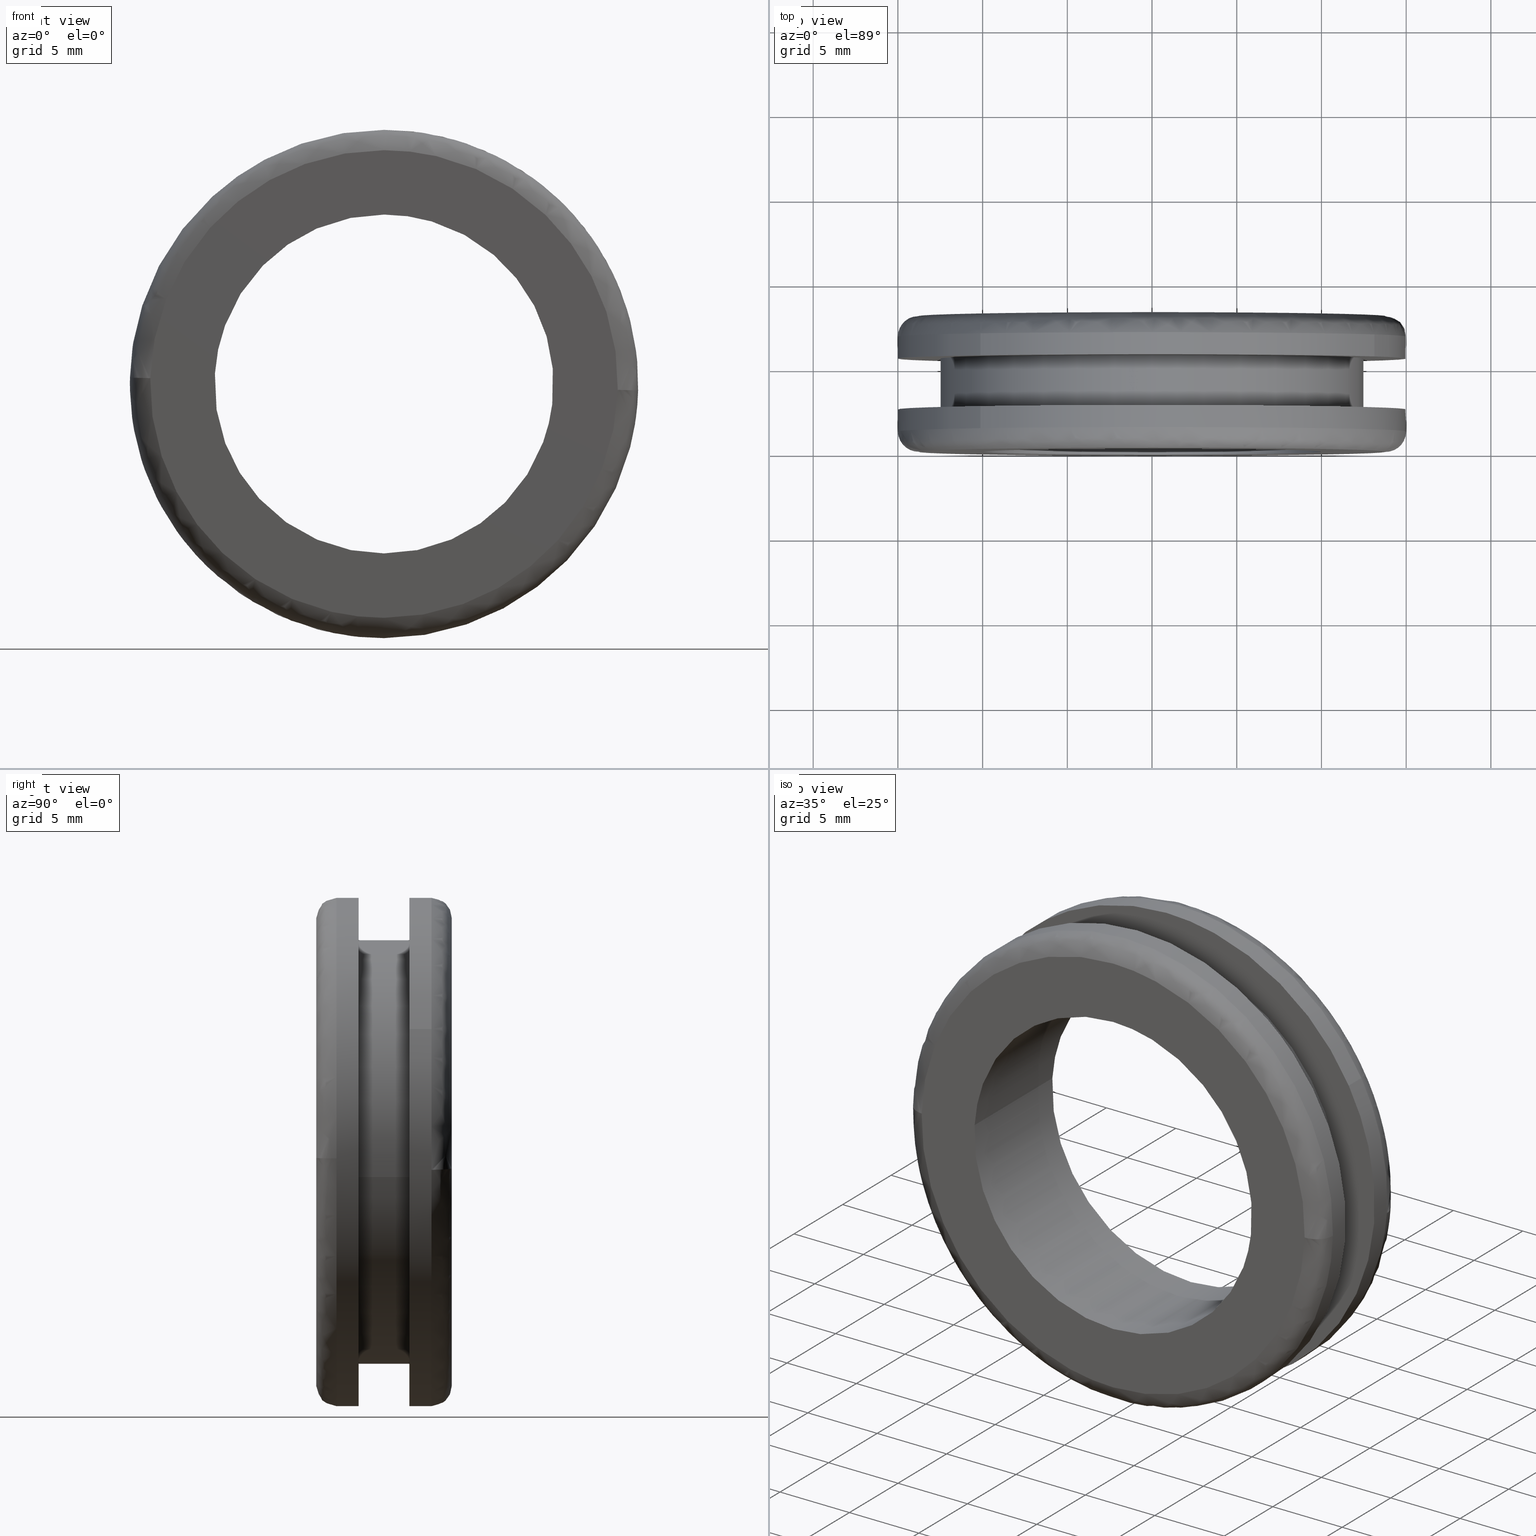
[diagram: canonical four-view strip — front | top / right | iso, engineering-drawing reading convention]
A machine part, canonical four-view strip (front | top / right | iso — engineering-drawing reading convention). The complete STEP part file that produces these views, byte-faithful:
ISO-10303-21;
HEADER;
/****************************************************************
 * Generated by software with PDE/Lib inside                    *
 * PDElib Version 4.4.1-0003, patched  Thursday August 19 11:58 *
 * International Technegroup Inc. (www.iti-oh.com)              *
 ****************************************************************/
FILE_DESCRIPTION((''),'2;1');
FILE_NAME('','2005-12-14T14:20:22',(''),(''),'','CADfix','');
FILE_SCHEMA(('AUTOMOTIVE_DESIGN'));
ENDSEC;
DATA;
#5=APPLICATION_CONTEXT('automotive design');
#6=APPLICATION_PROTOCOL_DEFINITION('Draft International Standard','automotive_design',1998,#5);
#7=PRODUCT_CONTEXT('None',#5,'mechanical');
#8=PRODUCT('grommet','','None',(#7));
#9=PRODUCT_RELATED_PRODUCT_CATEGORY('part','description',(#8));
#10=PRODUCT_DEFINITION_FORMATION('None','None',#8);
#11=PRODUCT_DEFINITION_CONTEXT('part definition',#5,'design');
#12=PRODUCT_DEFINITION('None','None',#10,#11);
#18=(NAMED_UNIT(*)PLANE_ANGLE_UNIT()SI_UNIT($,.RADIAN.));
#19=DIMENSIONAL_EXPONENTS(0.0,0.0,0.0,0.0,0.0,0.0,0.0);
#20=PLANE_ANGLE_MEASURE_WITH_UNIT(PLANE_ANGLE_MEASURE(0.017453292500000),#18);
#24=(CONVERSION_BASED_UNIT('DEGREE',#20)NAMED_UNIT(#19)PLANE_ANGLE_UNIT());
#28=(NAMED_UNIT(*)SI_UNIT($,.STERADIAN.)SOLID_ANGLE_UNIT());
#32=(LENGTH_UNIT()NAMED_UNIT(*)SI_UNIT(.MILLI.,.METRE.));
#34=UNCERTAINTY_MEASURE_WITH_UNIT(LENGTH_MEASURE(0.001000000000000),#32,'DISTANCE_ACCURACY_VALUE','');
#36=(GEOMETRIC_REPRESENTATION_CONTEXT(3)GLOBAL_UNCERTAINTY_ASSIGNED_CONTEXT((#34))GLOBAL_UNIT_ASSIGNED_CONTEXT((#24,#28,#32))REPRESENTATION_CONTEXT('None','None'));
#37=AXIS2_PLACEMENT_3D('',#38,#39,#40);
#38=CARTESIAN_POINT('',(0.0,0.0,0.0));
#39=DIRECTION('',(0.0,0.0,1.0));
#40=DIRECTION('',(1.0,0.0,0.0));
#41=ADVANCED_BREP_SHAPE_REPRESENTATION('',(#37,#1227),#36);
#42=PRODUCT_DEFINITION_SHAPE('','',#12);
#43=SHAPE_DEFINITION_REPRESENTATION(#42,#41);
#44=CARTESIAN_POINT('',(-9.815094855040568,2.532500000001963,-11.343011636534445));
#45=CARTESIAN_POINT('',(0.285762869676805,2.532500000001963,-20.083272147777308));
#46=CARTESIAN_POINT('',(10.133853114234901,2.532500000001962,-11.059160052151860));
#47=CARTESIAN_POINT('',(21.193013166386756,2.532500000001962,-0.925306937916956));
#48=CARTESIAN_POINT('',(11.059160052151860,2.532500000001962,10.133853114234901));
#49=CARTESIAN_POINT('',(0.925306937916956,2.532500000001962,21.193013166386756));
#50=CARTESIAN_POINT('',(-10.133853114234901,2.532500000001962,11.059160052151860));
#51=CARTESIAN_POINT('',(-9.815094855040568,1.166687499915348,-11.343011636534445));
#52=CARTESIAN_POINT('',(0.285762869676805,1.166687499915348,-20.083272147777308));
#53=CARTESIAN_POINT('',(10.133853114234901,1.166687499915348,-11.059160052151860));
#54=CARTESIAN_POINT('',(21.193013166386756,1.166687499915348,-0.925306937916956));
#55=CARTESIAN_POINT('',(11.059160052151860,1.166687499915348,10.133853114234901));
#56=CARTESIAN_POINT('',(0.925306937916956,1.166687499915348,21.193013166386756));
#57=CARTESIAN_POINT('',(-10.133853114234901,1.166687499915348,11.059160052151860));
#65=(BOUNDED_SURFACE()B_SPLINE_SURFACE(2,1,((#44,#51),(#45,#52),(#46,#53),(#47,#54),(#48,#55),(#49,#56),(#50,#57)),.UNSPECIFIED.,.F.,.F.,.U.)B_SPLINE_SURFACE_WITH_KNOTS((3,2,2,3),(2,2),(0.0,22.864588642994839,47.717402385380517,72.570216127766216),(0.0,1.0),.UNSPECIFIED.)GEOMETRIC_REPRESENTATION_ITEM()RATIONAL_B_SPLINE_SURFACE(((0.956886118190660,0.956886118190660),(0.730538238691624,0.730538238691624),(1.0,1.0),(0.707106781186548,0.707106781186548),(1.0,1.0),(0.707106781186548,0.707106781186548),(1.0,1.0)))REPRESENTATION_ITEM('')SURFACE());
#66=CARTESIAN_POINT('',(-9.815094359560231,2.499999999999924,-11.343012065272980));
#67=VERTEX_POINT('',#66);
#68=CARTESIAN_POINT('',(0.0,2.499999999999901,-15.0));
#69=VERTEX_POINT('',#68);
#70=CARTESIAN_POINT('',(-9.815094359560231,2.499999999999923,-11.343012065272983));
#71=CARTESIAN_POINT('',(-5.588822007151493,2.499999999999901,-14.999999999999996));
#72=CARTESIAN_POINT('',(0.0,2.499999999999901,-15.0));
#80=(BOUNDED_CURVE()B_SPLINE_CURVE(2,(#70,#71,#72),.UNSPECIFIED.,.F.,.U.)B_SPLINE_CURVE_WITH_KNOTS((3,3),(0.885882133147832,1.0),.UNSPECIFIED.)CURVE()GEOMETRIC_REPRESENTATION_ITEM()RATIONAL_B_SPLINE_CURVE((0.854663299575205,0.866302602614174,1.0))REPRESENTATION_ITEM(''));
#81=EDGE_CURVE('',#67,#69,#80,.T.);
#82=ORIENTED_EDGE('',*,*,#81,.T.);
#83=CARTESIAN_POINT('',(0.0,2.499999999999901,15.0));
#84=VERTEX_POINT('',#83);
#85=CARTESIAN_POINT('',(0.0,2.499999999999901,-15.0));
#86=CARTESIAN_POINT('',(14.999999999999996,2.499999999999900,-14.999999999999996));
#87=CARTESIAN_POINT('',(15.0,2.499999999999901,-1.928755E-016));
#88=CARTESIAN_POINT('',(14.999999999999996,2.499999999999900,14.999999999999996));
#89=CARTESIAN_POINT('',(0.0,2.499999999999901,15.0));
#97=(BOUNDED_CURVE()B_SPLINE_CURVE(2,(#85,#86,#87,#88,#89),.UNSPECIFIED.,.F.,.U.)B_SPLINE_CURVE_WITH_KNOTS((3,2,3),(0.0,0.250000000000000,0.500000000000000),.UNSPECIFIED.)CURVE()GEOMETRIC_REPRESENTATION_ITEM()RATIONAL_B_SPLINE_CURVE((1.0,0.707106781186547,1.0,0.707106781186547,1.0))REPRESENTATION_ITEM(''));
#98=EDGE_CURVE('',#69,#84,#97,.T.);
#99=ORIENTED_EDGE('',*,*,#98,.T.);
#100=CARTESIAN_POINT('',(-10.133852520110439,2.499999999999901,11.059160596566571));
#101=VERTEX_POINT('',#100);
#102=CARTESIAN_POINT('',(0.0,2.499999999999901,15.0));
#103=CARTESIAN_POINT('',(-5.833180050095272,2.499999999999901,14.999999999999996));
#104=CARTESIAN_POINT('',(-10.133852520110443,2.499999999999901,11.059160596566569));
#112=(BOUNDED_CURVE()B_SPLINE_CURVE(2,(#102,#103,#104),.UNSPECIFIED.,.F.,.U.)B_SPLINE_CURVE_WITH_KNOTS((3,3),(0.500000000000000,0.618415192864190),.UNSPECIFIED.)CURVE()GEOMETRIC_REPRESENTATION_ITEM()RATIONAL_B_SPLINE_CURVE((1.0,0.861267972022367,0.853959782840026))REPRESENTATION_ITEM(''));
#113=EDGE_CURVE('',#84,#101,#112,.T.);
#114=ORIENTED_EDGE('',*,*,#113,.T.);
#115=CARTESIAN_POINT('',(-10.133852493038910,1.199999999977785,11.059160621372980));
#116=VERTEX_POINT('',#115);
#117=CARTESIAN_POINT('',(-10.133852520110439,2.499999999999901,11.059160596566571));
#118=CARTESIAN_POINT('',(-10.133852493038910,1.199999999977785,11.059160621372980));
#119=QUASI_UNIFORM_CURVE('',1,(#117,#118),.UNSPECIFIED.,.F.,.U.);
#120=EDGE_CURVE('',#101,#116,#119,.T.);
#121=ORIENTED_EDGE('',*,*,#120,.T.);
#122=CARTESIAN_POINT('',(0.0,1.200000000000000,15.0));
#123=VERTEX_POINT('',#122);
#124=CARTESIAN_POINT('',(0.0,1.200000000000000,15.0));
#125=CARTESIAN_POINT('',(-5.833180007824203,1.200000000000000,15.0));
#126=CARTESIAN_POINT('',(-10.133852493038908,1.199999999977785,11.059160621372975));
#134=(BOUNDED_CURVE()B_SPLINE_CURVE(2,(#124,#125,#126),.UNSPECIFIED.,.F.,.U.)B_SPLINE_CURVE_WITH_KNOTS((3,3),(0.500000000000000,0.618415192125123),.UNSPECIFIED.)CURVE()GEOMETRIC_REPRESENTATION_ITEM()RATIONAL_B_SPLINE_CURVE((1.0,0.861267972888237,0.853959782931252))REPRESENTATION_ITEM(''));
#135=EDGE_CURVE('',#123,#116,#134,.T.);
#136=ORIENTED_EDGE('',*,*,#135,.F.);
#137=CARTESIAN_POINT('',(14.995262839249479,1.199999999917460,-0.376951431650665));
#138=VERTEX_POINT('',#137);
#139=CARTESIAN_POINT('',(14.995262839249481,1.199999999917460,-0.376951431650665));
#140=CARTESIAN_POINT('',(15.000000000000002,1.200000000000000,-0.188505481851297));
#141=CARTESIAN_POINT('',(15.0,1.200000000000000,-1.928755E-016));
#142=CARTESIAN_POINT('',(14.999999999999996,1.200000000000000,14.999999999999996));
#143=CARTESIAN_POINT('',(0.0,1.200000000000000,15.0));
#151=(BOUNDED_CURVE()B_SPLINE_CURVE(2,(#139,#140,#141,#142,#143),.UNSPECIFIED.,.F.,.U.)B_SPLINE_CURVE_WITH_KNOTS((3,2,3),(0.245579891769794,0.250000000000000,0.500000000000000),.UNSPECIFIED.)CURVE()GEOMETRIC_REPRESENTATION_ITEM()RATIONAL_B_SPLINE_CURVE((0.989826157681544,0.994821521091804,1.0,0.707106781186547,1.0))REPRESENTATION_ITEM(''));
#152=EDGE_CURVE('',#138,#123,#151,.T.);
#153=ORIENTED_EDGE('',*,*,#152,.F.);
#154=CARTESIAN_POINT('',(0.0,1.200000000000000,-15.0));
#155=VERTEX_POINT('',#154);
#156=CARTESIAN_POINT('',(0.0,1.200000000000000,-15.0));
#157=CARTESIAN_POINT('',(14.627668142708558,1.200000000000000,-15.000000000000007));
#158=CARTESIAN_POINT('',(14.995262839249484,1.199999999917460,-0.376951431650665));
#166=(BOUNDED_CURVE()B_SPLINE_CURVE(2,(#156,#157,#158),.UNSPECIFIED.,.F.,.U.)B_SPLINE_CURVE_WITH_KNOTS((3,3),(0.0,0.245579891769793),.UNSPECIFIED.)CURVE()GEOMETRIC_REPRESENTATION_ITEM()RATIONAL_B_SPLINE_CURVE((1.0,0.712285260094744,0.989826157681544))REPRESENTATION_ITEM(''));
#167=EDGE_CURVE('',#155,#138,#166,.T.);
#168=ORIENTED_EDGE('',*,*,#167,.F.);
#169=CARTESIAN_POINT('',(-9.815094365530444,1.200000000000000,-11.343012060106970));
#170=VERTEX_POINT('',#169);
#171=CARTESIAN_POINT('',(-9.815094365530444,1.199999999999999,-11.343012060106965));
#172=CARTESIAN_POINT('',(-5.588822016142505,1.200000000000000,-15.000000000000005));
#173=CARTESIAN_POINT('',(0.0,1.200000000000000,-15.0));
#181=(BOUNDED_CURVE()B_SPLINE_CURVE(2,(#171,#172,#173),.UNSPECIFIED.,.F.,.U.)B_SPLINE_CURVE_WITH_KNOTS((3,3),(0.885882132988790,1.0),.UNSPECIFIED.)CURVE()GEOMETRIC_REPRESENTATION_ITEM()RATIONAL_B_SPLINE_CURVE((0.854663299542762,0.866302602427844,1.0))REPRESENTATION_ITEM(''));
#182=EDGE_CURVE('',#170,#155,#181,.T.);
#183=ORIENTED_EDGE('',*,*,#182,.F.);
#184=CARTESIAN_POINT('',(-9.815094359560231,2.499999999999924,-11.343012065272980));
#185=CARTESIAN_POINT('',(-9.815094365530444,1.200000000000000,-11.343012060106970));
#186=QUASI_UNIFORM_CURVE('',1,(#184,#185),.UNSPECIFIED.,.F.,.U.);
#187=EDGE_CURVE('',#67,#170,#186,.T.);
#188=ORIENTED_EDGE('',*,*,#187,.F.);
#189=EDGE_LOOP('',(#82,#99,#114,#121,#136,#153,#168,#183,#188));
#190=FACE_OUTER_BOUND('',#189,.T.);
#191=ADVANCED_FACE('',(#190),#65,.T.);
#192=CARTESIAN_POINT('',(-10.133853114234901,2.532500000001962,11.059160052151860));
#193=CARTESIAN_POINT('',(-21.193013166386756,2.532500000001962,0.925306937916956));
#194=CARTESIAN_POINT('',(-11.059160052151860,2.532500000001962,-10.133853114234901));
#195=CARTESIAN_POINT('',(-10.472148208553694,2.532500000001962,-10.774464129381919));
#196=CARTESIAN_POINT('',(-9.815094855040568,2.532500000001963,-11.343011636534445));
#197=CARTESIAN_POINT('',(-10.133853114234901,1.166687499915348,11.059160052151860));
#198=CARTESIAN_POINT('',(-21.193013166386756,1.166687499915348,0.925306937916956));
#199=CARTESIAN_POINT('',(-11.059160052151860,1.166687499915348,-10.133853114234901));
#200=CARTESIAN_POINT('',(-10.472148208553694,1.166687499915348,-10.774464129381919));
#201=CARTESIAN_POINT('',(-9.815094855040568,1.166687499915348,-11.343011636534445));
#209=(BOUNDED_SURFACE()B_SPLINE_SURFACE(2,1,((#192,#197),(#193,#198),(#194,#199),(#195,#200),(#196,#201)),.UNSPECIFIED.,.F.,.F.,.U.)B_SPLINE_SURFACE_WITH_KNOTS((3,2,3),(2,2),(0.0,24.852813742385688,26.841038841776552),(0.0,1.0),.UNSPECIFIED.)GEOMETRIC_REPRESENTATION_ITEM()RATIONAL_B_SPLINE_SURFACE(((1.0,1.0),(0.707106781186548,0.707106781186548),(1.0,1.0),(0.976568542494924,0.976568542494924),(0.956886118190660,0.956886118190660)))REPRESENTATION_ITEM('')SURFACE());
#210=CARTESIAN_POINT('',(-10.133852520110441,2.499999999999900,11.059160596566567));
#211=CARTESIAN_POINT('',(-15.000000000000005,2.499999999999901,6.600158925230537));
#212=CARTESIAN_POINT('',(-15.0,2.499999999999901,-1.928755E-016));
#213=CARTESIAN_POINT('',(-15.000000000000004,2.499999999999901,-6.856520001178020));
#214=CARTESIAN_POINT('',(-9.815094359560229,2.499999999999924,-11.343012065272983));
#222=(BOUNDED_CURVE()B_SPLINE_CURVE(2,(#210,#211,#212,#213,#214),.UNSPECIFIED.,.F.,.U.)B_SPLINE_CURVE_WITH_KNOTS((3,2,3),(0.618415192864190,0.750000000000000,0.885882133147832),.UNSPECIFIED.)CURVE()GEOMETRIC_REPRESENTATION_ITEM()RATIONAL_B_SPLINE_CURVE((0.853959782840026,0.845838809164180,1.0,0.840804178572373,0.854663299575205))REPRESENTATION_ITEM(''));
#223=EDGE_CURVE('',#101,#67,#222,.T.);
#224=ORIENTED_EDGE('',*,*,#223,.T.);
#225=ORIENTED_EDGE('',*,*,#187,.T.);
#226=CARTESIAN_POINT('',(-14.995262839249479,1.199999999917460,0.376951431650666));
#227=VERTEX_POINT('',#226);
#228=CARTESIAN_POINT('',(-14.995262839249481,1.199999999917460,0.376951431650666));
#229=CARTESIAN_POINT('',(-15.000000000000002,1.200000000000000,0.188505481851298));
#230=CARTESIAN_POINT('',(-15.0,1.200000000000000,-1.928755E-016));
#231=CARTESIAN_POINT('',(-14.999999999999996,1.200000000000000,-6.856519991633413));
#232=CARTESIAN_POINT('',(-9.815094365530444,1.200000000000000,-11.343012060106965));
#240=(BOUNDED_CURVE()B_SPLINE_CURVE(2,(#228,#229,#230,#231,#232),.UNSPECIFIED.,.F.,.U.)B_SPLINE_CURVE_WITH_KNOTS((3,2,3),(0.745579891769793,0.750000000000000,0.885882132988790),.UNSPECIFIED.)CURVE()GEOMETRIC_REPRESENTATION_ITEM()RATIONAL_B_SPLINE_CURVE((0.989826157681544,0.994821521091804,1.0,0.840804178758702,0.854663299542762))REPRESENTATION_ITEM(''));
#241=EDGE_CURVE('',#227,#170,#240,.T.);
#242=ORIENTED_EDGE('',*,*,#241,.F.);
#243=CARTESIAN_POINT('',(-10.133852493038908,1.199999999977785,11.059160621372975));
#244=CARTESIAN_POINT('',(-14.835023439329238,1.199999999953440,6.751332100486773));
#245=CARTESIAN_POINT('',(-14.995262839249481,1.199999999917460,0.376951431650666));
#253=(BOUNDED_CURVE()B_SPLINE_CURVE(2,(#243,#244,#245),.UNSPECIFIED.,.F.,.U.)B_SPLINE_CURVE_WITH_KNOTS((3,3),(0.618415192125124,0.745579891769794),.UNSPECIFIED.)CURVE()GEOMETRIC_REPRESENTATION_ITEM()RATIONAL_B_SPLINE_CURVE((0.853959782931252,0.846111602607868,0.989826157681545))REPRESENTATION_ITEM(''));
#254=EDGE_CURVE('',#116,#227,#253,.T.);
#255=ORIENTED_EDGE('',*,*,#254,.F.);
#256=ORIENTED_EDGE('',*,*,#120,.F.);
#257=EDGE_LOOP('',(#224,#225,#242,#255,#256));
#258=FACE_OUTER_BOUND('',#257,.T.);
#259=ADVANCED_FACE('',(#258),#209,.T.);
#260=CARTESIAN_POINT('',(12.412619079545834,5.574999999999902,-1.475427933209482));
#261=CARTESIAN_POINT('',(12.454845193107571,5.574999999999901,-1.120184107974721));
#262=CARTESIAN_POINT('',(12.476684980273340,5.574999999999901,-0.763106744185713));
#263=CARTESIAN_POINT('',(13.239791724459048,5.574999999999902,11.713578236087622));
#264=CARTESIAN_POINT('',(0.763106744185712,5.574999999999901,12.476684980273340));
#265=CARTESIAN_POINT('',(-11.713578236087622,5.574999999999902,13.239791724459048));
#266=CARTESIAN_POINT('',(-12.476684980273340,5.574999999999901,0.763106744185712));
#267=CARTESIAN_POINT('',(12.412619079545834,2.423124999999901,-1.475427933209482));
#268=CARTESIAN_POINT('',(12.454845193107571,2.423124999999901,-1.120184107974721));
#269=CARTESIAN_POINT('',(12.476684980273340,2.423124999999900,-0.763106744185713));
#270=CARTESIAN_POINT('',(13.239791724459048,2.423124999999901,11.713578236087622));
#271=CARTESIAN_POINT('',(0.763106744185712,2.423124999999900,12.476684980273340));
#272=CARTESIAN_POINT('',(-11.713578236087622,2.423124999999901,13.239791724459048));
#273=CARTESIAN_POINT('',(-12.476684980273340,2.423124999999900,0.763106744185712));
#281=(BOUNDED_SURFACE()B_SPLINE_SURFACE(2,1,((#260,#267),(#261,#268),(#262,#269),(#263,#270),(#264,#271),(#265,#272),(#266,#273)),.UNSPECIFIED.,.F.,.F.,.U.)B_SPLINE_SURFACE_WITH_KNOTS((3,2,2,3),(2,2),(0.0,0.828427124746191,21.539105243400940,42.249783362055702),(0.0,3.151875000000001),.UNSPECIFIED.)GEOMETRIC_REPRESENTATION_ITEM()RATIONAL_B_SPLINE_SURFACE(((0.977505800795127,0.977505800795127),(0.988284271247462,0.988284271247462),(1.0,1.0),(0.707106781186548,0.707106781186548),(1.0,1.0),(0.707106781186548,0.707106781186548),(1.0,1.0)))REPRESENTATION_ITEM('')SURFACE());
#282=CARTESIAN_POINT('',(12.412619350192990,2.499999999999915,-1.475425656280013));
#283=VERTEX_POINT('',#282);
#284=CARTESIAN_POINT('',(0.0,2.499999999999901,12.500000000000000));
#285=VERTEX_POINT('',#284);
#286=CARTESIAN_POINT('',(12.412619350192989,2.499999999999914,-1.475425656280013));
#287=CARTESIAN_POINT('',(12.499999999999996,2.499999999999901,-0.740300345148469));
#288=CARTESIAN_POINT('',(12.500000000000000,2.499999999999901,-1.928755E-016));
#289=CARTESIAN_POINT('',(12.499999999999998,2.499999999999900,12.499999999999998));
#290=CARTESIAN_POINT('',(0.0,2.499999999999901,12.500000000000000));
#298=(BOUNDED_CURVE()B_SPLINE_CURVE(2,(#286,#287,#288,#289,#290),.UNSPECIFIED.,.F.,.U.)B_SPLINE_CURVE_WITH_KNOTS((3,2,3),(0.229562504517037,0.250000000000000,0.500000000000000),.UNSPECIFIED.)CURVE()GEOMETRIC_REPRESENTATION_ITEM()RATIONAL_B_SPLINE_CURVE((0.956026814951894,0.976055984654039,1.0,0.707106781186547,1.0))REPRESENTATION_ITEM(''));
#299=EDGE_CURVE('',#283,#285,#298,.T.);
#300=ORIENTED_EDGE('',*,*,#299,.F.);
#301=CARTESIAN_POINT('',(12.412619346857131,5.499999999999899,-1.475425684344294));
#302=VERTEX_POINT('',#301);
#303=CARTESIAN_POINT('',(12.412619346857131,5.499999999999899,-1.475425684344294));
#304=CARTESIAN_POINT('',(12.412619350192990,2.499999999999915,-1.475425656280013));
#305=QUASI_UNIFORM_CURVE('',1,(#303,#304),.UNSPECIFIED.,.F.,.U.);
#306=EDGE_CURVE('',#302,#283,#305,.T.);
#307=ORIENTED_EDGE('',*,*,#306,.F.);
#308=CARTESIAN_POINT('',(0.0,5.499999999999900,12.500000000000000));
#309=VERTEX_POINT('',#308);
#310=CARTESIAN_POINT('',(12.412619346857136,5.499999999999899,-1.475425684344294));
#311=CARTESIAN_POINT('',(12.500000000000000,5.499999999999900,-0.740300359328956));
#312=CARTESIAN_POINT('',(12.500000000000000,5.499999999999900,-1.928755E-016));
#313=CARTESIAN_POINT('',(12.499999999999998,5.499999999999900,12.499999999999998));
#314=CARTESIAN_POINT('',(0.0,5.499999999999900,12.500000000000000));
#322=(BOUNDED_CURVE()B_SPLINE_CURVE(2,(#310,#311,#312,#313,#314),.UNSPECIFIED.,.F.,.U.)B_SPLINE_CURVE_WITH_KNOTS((3,2,3),(0.229562504134930,0.250000000000000,0.500000000000000),.UNSPECIFIED.)CURVE()GEOMETRIC_REPRESENTATION_ITEM()RATIONAL_B_SPLINE_CURVE((0.956026814202948,0.976055984206372,1.0,0.707106781186547,1.0))REPRESENTATION_ITEM(''));
#323=EDGE_CURVE('',#302,#309,#322,.T.);
#324=ORIENTED_EDGE('',*,*,#323,.T.);
#325=CARTESIAN_POINT('',(-12.476685738722409,5.499999999999899,0.763094343450776));
#326=VERTEX_POINT('',#325);
#327=CARTESIAN_POINT('',(0.0,5.499999999999900,12.500000000000000));
#328=CARTESIAN_POINT('',(-11.758837545411410,5.499999999999901,12.500000000000000));
#329=CARTESIAN_POINT('',(-12.476685738722406,5.499999999999900,0.763094343450776));
#337=(BOUNDED_CURVE()B_SPLINE_CURVE(2,(#327,#328,#329),.UNSPECIFIED.,.F.,.U.)B_SPLINE_CURVE_WITH_KNOTS((3,3),(0.500000000000000,0.739333133738426),.UNSPECIFIED.)CURVE()GEOMETRIC_REPRESENTATION_ITEM()RATIONAL_B_SPLINE_CURVE((1.0,0.719603792362568,0.976072409223032))REPRESENTATION_ITEM(''));
#338=EDGE_CURVE('',#309,#326,#337,.T.);
#339=ORIENTED_EDGE('',*,*,#338,.T.);
#340=CARTESIAN_POINT('',(-12.476685748195219,2.499999999999971,0.763094188566475));
#341=VERTEX_POINT('',#340);
#342=CARTESIAN_POINT('',(-12.476685738722409,5.499999999999899,0.763094343450776));
#343=CARTESIAN_POINT('',(-12.476685748195219,2.499999999999971,0.763094188566475));
#344=QUASI_UNIFORM_CURVE('',1,(#342,#343),.UNSPECIFIED.,.F.,.U.);
#345=EDGE_CURVE('',#326,#341,#344,.T.);
#346=ORIENTED_EDGE('',*,*,#345,.T.);
#347=CARTESIAN_POINT('',(0.0,2.499999999999901,12.500000000000000));
#348=CARTESIAN_POINT('',(-11.758837691657179,2.499999999999900,12.499999999999998));
#349=CARTESIAN_POINT('',(-12.476685748195219,2.499999999999971,0.763094188566475));
#357=(BOUNDED_CURVE()B_SPLINE_CURVE(2,(#347,#348,#349),.UNSPECIFIED.,.F.,.U.)B_SPLINE_CURVE_WITH_KNOTS((3,3),(0.500000000000000,0.739333135880405),.UNSPECIFIED.)CURVE()GEOMETRIC_REPRESENTATION_ITEM()RATIONAL_B_SPLINE_CURVE((1.0,0.719603789853083,0.976072413813707))REPRESENTATION_ITEM(''));
#358=EDGE_CURVE('',#285,#341,#357,.T.);
#359=ORIENTED_EDGE('',*,*,#358,.F.);
#360=EDGE_LOOP('',(#300,#307,#324,#339,#346,#359));
#361=FACE_OUTER_BOUND('',#360,.T.);
#362=ADVANCED_FACE('',(#361),#281,.T.);
#363=CARTESIAN_POINT('',(-12.476684980273340,5.574999999999901,0.763106744185712));
#364=CARTESIAN_POINT('',(-13.239791724459048,5.574999999999902,-11.713578236087622));
#365=CARTESIAN_POINT('',(-0.763106744185712,5.574999999999901,-12.476684980273340));
#366=CARTESIAN_POINT('',(11.019293635493762,5.574999999999901,-13.197327459156595));
#367=CARTESIAN_POINT('',(12.412619079545834,5.574999999999902,-1.475427933209482));
#368=CARTESIAN_POINT('',(-12.476684980273340,2.423124999999900,0.763106744185712));
#369=CARTESIAN_POINT('',(-13.239791724459048,2.423124999999901,-11.713578236087622));
#370=CARTESIAN_POINT('',(-0.763106744185712,2.423124999999900,-12.476684980273340));
#371=CARTESIAN_POINT('',(11.019293635493762,2.423124999999900,-13.197327459156595));
#372=CARTESIAN_POINT('',(12.412619079545834,2.423124999999901,-1.475427933209482));
#380=(BOUNDED_SURFACE()B_SPLINE_SURFACE(2,1,((#363,#368),(#364,#369),(#365,#370),(#366,#371),(#367,#372)),.UNSPECIFIED.,.F.,.F.,.U.)B_SPLINE_SURFACE_WITH_KNOTS((3,2,3),(2,2),(0.0,20.710678118654752,40.592929112563311),(0.0,3.151875000000001),.UNSPECIFIED.)GEOMETRIC_REPRESENTATION_ITEM()RATIONAL_B_SPLINE_SURFACE(((1.0,1.0),(0.707106781186548,0.707106781186548),(1.0,1.0),(0.718822509939086,0.718822509939086),(0.977505800795127,0.977505800795127)))REPRESENTATION_ITEM('')SURFACE());
#381=CARTESIAN_POINT('',(0.0,2.499999999999901,-12.500000000000000));
#382=VERTEX_POINT('',#381);
#383=CARTESIAN_POINT('',(0.0,2.499999999999901,-12.500000000000000));
#384=CARTESIAN_POINT('',(11.102183625276044,2.499999999999901,-12.500000000000000));
#385=CARTESIAN_POINT('',(12.412619350192989,2.499999999999914,-1.475425656280013));
#393=(BOUNDED_CURVE()B_SPLINE_CURVE(2,(#383,#384,#385),.UNSPECIFIED.,.F.,.U.)B_SPLINE_CURVE_WITH_KNOTS((3,3),(0.0,0.229562504517037),.UNSPECIFIED.)CURVE()GEOMETRIC_REPRESENTATION_ITEM()RATIONAL_B_SPLINE_CURVE((1.0,0.731050796532509,0.956026814951894))REPRESENTATION_ITEM(''));
#394=EDGE_CURVE('',#382,#283,#393,.T.);
#395=ORIENTED_EDGE('',*,*,#394,.F.);
#396=CARTESIAN_POINT('',(-12.476685748195219,2.499999999999971,0.763094188566475));
#397=CARTESIAN_POINT('',(-12.499999999999996,2.499999999999901,0.381903245820858));
#398=CARTESIAN_POINT('',(-12.500000000000000,2.499999999999901,-1.928755E-016));
#399=CARTESIAN_POINT('',(-12.499999999999998,2.499999999999900,-12.499999999999998));
#400=CARTESIAN_POINT('',(0.0,2.499999999999901,-12.500000000000000));
#408=(BOUNDED_CURVE()B_SPLINE_CURVE(2,(#396,#397,#398,#399,#400),.UNSPECIFIED.,.F.,.U.)B_SPLINE_CURVE_WITH_KNOTS((3,2,3),(0.739333135880405,0.750000000000000,1.0),.UNSPECIFIED.)CURVE()GEOMETRIC_REPRESENTATION_ITEM()RATIONAL_B_SPLINE_CURVE((0.976072413813707,0.987502991333464,1.0,0.707106781186547,1.0))REPRESENTATION_ITEM(''));
#409=EDGE_CURVE('',#341,#382,#408,.T.);
#410=ORIENTED_EDGE('',*,*,#409,.F.);
#411=ORIENTED_EDGE('',*,*,#345,.F.);
#412=CARTESIAN_POINT('',(0.0,5.499999999999900,-12.500000000000000));
#413=VERTEX_POINT('',#412);
#414=CARTESIAN_POINT('',(-12.476685738722406,5.499999999999900,0.763094343450776));
#415=CARTESIAN_POINT('',(-12.500000000000002,5.499999999999900,0.381903323480138));
#416=CARTESIAN_POINT('',(-12.500000000000000,5.499999999999900,-1.928755E-016));
#417=CARTESIAN_POINT('',(-12.499999999999998,5.499999999999900,-12.499999999999998));
#418=CARTESIAN_POINT('',(0.0,5.499999999999900,-12.500000000000000));
#426=(BOUNDED_CURVE()B_SPLINE_CURVE(2,(#414,#415,#416,#417,#418),.UNSPECIFIED.,.F.,.U.)B_SPLINE_CURVE_WITH_KNOTS((3,2,3),(0.739333133738426,0.750000000000000,1.0),.UNSPECIFIED.)CURVE()GEOMETRIC_REPRESENTATION_ITEM()RATIONAL_B_SPLINE_CURVE((0.976072409223032,0.987502988823980,1.0,0.707106781186547,1.0))REPRESENTATION_ITEM(''));
#427=EDGE_CURVE('',#326,#413,#426,.T.);
#428=ORIENTED_EDGE('',*,*,#427,.T.);
#429=CARTESIAN_POINT('',(0.0,5.499999999999900,-12.500000000000000));
#430=CARTESIAN_POINT('',(11.102183599997884,5.499999999999900,-12.499999999999996));
#431=CARTESIAN_POINT('',(12.412619346857136,5.499999999999899,-1.475425684344294));
#439=(BOUNDED_CURVE()B_SPLINE_CURVE(2,(#429,#430,#431),.UNSPECIFIED.,.F.,.U.)B_SPLINE_CURVE_WITH_KNOTS((3,3),(0.0,0.229562504134930),.UNSPECIFIED.)CURVE()GEOMETRIC_REPRESENTATION_ITEM()RATIONAL_B_SPLINE_CURVE((1.0,0.731050796980176,0.956026814202948))REPRESENTATION_ITEM(''));
#440=EDGE_CURVE('',#413,#302,#439,.T.);
#441=ORIENTED_EDGE('',*,*,#440,.T.);
#442=ORIENTED_EDGE('',*,*,#306,.T.);
#443=EDGE_LOOP('',(#395,#410,#411,#428,#441,#442));
#444=FACE_OUTER_BOUND('',#443,.T.);
#445=ADVANCED_FACE('',(#444),#380,.T.);
#446=CARTESIAN_POINT('',(13.124196411646949,6.832500000077928,7.263295983815689));
#447=CARTESIAN_POINT('',(12.262045365414053,6.832500000077928,8.821134146060496));
#448=CARTESIAN_POINT('',(11.059160052151860,6.832500000077928,10.133853114234901));
#449=CARTESIAN_POINT('',(0.925306937916956,6.832500000077928,21.193013166386756));
#450=CARTESIAN_POINT('',(-10.133853114234901,6.832500000077928,11.059160052151860));
#451=CARTESIAN_POINT('',(13.124196411646949,5.466687499997949,7.263295983815689));
#452=CARTESIAN_POINT('',(12.262045365414053,5.466687499997949,8.821134146060496));
#453=CARTESIAN_POINT('',(11.059160052151860,5.466687499997948,10.133853114234901));
#454=CARTESIAN_POINT('',(0.925306937916956,5.466687499997948,21.193013166386756));
#455=CARTESIAN_POINT('',(-10.133853114234901,5.466687499997948,11.059160052151860));
#463=(BOUNDED_SURFACE()B_SPLINE_SURFACE(2,1,((#446,#451),(#447,#452),(#448,#453),(#449,#454),(#450,#455)),.UNSPECIFIED.,.F.,.F.,.U.)B_SPLINE_SURFACE_WITH_KNOTS((3,2,3),(2,2),(0.0,3.976450198781717,28.829263941167412),(0.0,1.0),.UNSPECIFIED.)GEOMETRIC_REPRESENTATION_ITEM()RATIONAL_B_SPLINE_SURFACE(((0.921270302782944,0.921270302782944),(0.953137084989848,0.953137084989848),(1.0,1.0),(0.707106781186548,0.707106781186548),(1.0,1.0)))REPRESENTATION_ITEM('')SURFACE());
#464=CARTESIAN_POINT('',(13.124197754834460,6.800000000000095,7.263293556781960));
#465=VERTEX_POINT('',#464);
#466=CARTESIAN_POINT('',(0.0,6.800000000000000,15.0));
#467=VERTEX_POINT('',#466);
#468=CARTESIAN_POINT('',(13.124197754834459,6.800000000000095,7.263293556781960));
#469=CARTESIAN_POINT('',(8.842490704280804,6.800000000000002,14.999999999999998));
#470=CARTESIAN_POINT('',(0.0,6.800000000000000,15.0));
#478=(BOUNDED_CURVE()B_SPLINE_CURVE(2,(#468,#469,#470),.UNSPECIFIED.,.F.,.U.)B_SPLINE_CURVE_WITH_KNOTS((3,3),(0.332484260513294,0.500000000000000),.UNSPECIFIED.)CURVE()GEOMETRIC_REPRESENTATION_ITEM()RATIONAL_B_SPLINE_CURVE((0.870495160132448,0.803743103439291,1.0))REPRESENTATION_ITEM(''));
#479=EDGE_CURVE('',#465,#467,#478,.T.);
#480=ORIENTED_EDGE('',*,*,#479,.T.);
#481=CARTESIAN_POINT('',(-10.133852503868869,6.800000000020198,11.059160611448180));
#482=VERTEX_POINT('',#481);
#483=CARTESIAN_POINT('',(0.0,6.800000000000000,15.0));
#484=CARTESIAN_POINT('',(-5.833180024734737,6.800000000000001,15.0));
#485=CARTESIAN_POINT('',(-10.133852503868875,6.800000000020199,11.059160611448178));
#493=(BOUNDED_CURVE()B_SPLINE_CURVE(2,(#483,#484,#485),.UNSPECIFIED.,.F.,.U.)B_SPLINE_CURVE_WITH_KNOTS((3,3),(0.500000000000000,0.618415192420787),.UNSPECIFIED.)CURVE()GEOMETRIC_REPRESENTATION_ITEM()RATIONAL_B_SPLINE_CURVE((1.0,0.861267972541846,0.853959782894757))REPRESENTATION_ITEM(''));
#494=EDGE_CURVE('',#467,#482,#493,.T.);
#495=ORIENTED_EDGE('',*,*,#494,.T.);
#496=CARTESIAN_POINT('',(-10.133852520110439,5.499999999999900,11.059160596566571));
#497=VERTEX_POINT('',#496);
#498=CARTESIAN_POINT('',(-10.133852503868869,6.800000000020198,11.059160611448180));
#499=CARTESIAN_POINT('',(-10.133852520110439,5.499999999999900,11.059160596566571));
#500=QUASI_UNIFORM_CURVE('',1,(#498,#499),.UNSPECIFIED.,.F.,.U.);
#501=EDGE_CURVE('',#482,#497,#500,.T.);
#502=ORIENTED_EDGE('',*,*,#501,.T.);
#503=CARTESIAN_POINT('',(0.0,5.499999999999900,15.0));
#504=VERTEX_POINT('',#503);
#505=CARTESIAN_POINT('',(0.0,5.499999999999900,15.0));
#506=CARTESIAN_POINT('',(-5.833180050095272,5.499999999999901,14.999999999999996));
#507=CARTESIAN_POINT('',(-10.133852520110443,5.499999999999900,11.059160596566569));
#515=(BOUNDED_CURVE()B_SPLINE_CURVE(2,(#505,#506,#507),.UNSPECIFIED.,.F.,.U.)B_SPLINE_CURVE_WITH_KNOTS((3,3),(0.500000000000000,0.618415192864190),.UNSPECIFIED.)CURVE()GEOMETRIC_REPRESENTATION_ITEM()RATIONAL_B_SPLINE_CURVE((1.0,0.861267972022367,0.853959782840026))REPRESENTATION_ITEM(''));
#516=EDGE_CURVE('',#504,#497,#515,.T.);
#517=ORIENTED_EDGE('',*,*,#516,.F.);
#518=CARTESIAN_POINT('',(13.124197648995480,5.499999999999899,7.263293748024724));
#519=VERTEX_POINT('',#518);
#520=CARTESIAN_POINT('',(13.124197648995473,5.499999999999899,7.263293748024724));
#521=CARTESIAN_POINT('',(8.842490557013848,5.499999999999900,15.000000000000007));
#522=CARTESIAN_POINT('',(0.0,5.499999999999900,15.0));
#530=(BOUNDED_CURVE()B_SPLINE_CURVE(2,(#520,#521,#522),.UNSPECIFIED.,.F.,.U.)B_SPLINE_CURVE_WITH_KNOTS((3,3),(0.332484262755645,0.500000000000000),.UNSPECIFIED.)CURVE()GEOMETRIC_REPRESENTATION_ITEM()RATIONAL_B_SPLINE_CURVE((0.870495158345373,0.803743106066369,1.0))REPRESENTATION_ITEM(''));
#531=EDGE_CURVE('',#519,#504,#530,.T.);
#532=ORIENTED_EDGE('',*,*,#531,.F.);
#533=CARTESIAN_POINT('',(13.124197754834460,6.800000000000095,7.263293556781960));
#534=CARTESIAN_POINT('',(13.124197648995480,5.499999999999899,7.263293748024724));
#535=QUASI_UNIFORM_CURVE('',1,(#533,#534),.UNSPECIFIED.,.F.,.U.);
#536=EDGE_CURVE('',#465,#519,#535,.T.);
#537=ORIENTED_EDGE('',*,*,#536,.F.);
#538=EDGE_LOOP('',(#480,#495,#502,#517,#532,#537));
#539=FACE_OUTER_BOUND('',#538,.T.);
#540=ADVANCED_FACE('',(#539),#463,.T.);
#541=CARTESIAN_POINT('',(-10.133853114234901,6.832500000077928,11.059160052151860));
#542=CARTESIAN_POINT('',(-21.193013166386756,6.832500000077928,0.925306937916956));
#543=CARTESIAN_POINT('',(-11.059160052151860,6.832500000077928,-10.133853114234901));
#544=CARTESIAN_POINT('',(-0.925306937916956,6.832500000077928,-21.193013166386756));
#545=CARTESIAN_POINT('',(10.133853114234901,6.832500000077928,-11.059160052151860));
#546=CARTESIAN_POINT('',(18.846147480311931,6.832500000077928,-3.075813127299110));
#547=CARTESIAN_POINT('',(13.124196411646949,6.832500000077928,7.263295983815689));
#548=CARTESIAN_POINT('',(-10.133853114234901,5.466687499997948,11.059160052151860));
#549=CARTESIAN_POINT('',(-21.193013166386756,5.466687499997948,0.925306937916956));
#550=CARTESIAN_POINT('',(-11.059160052151860,5.466687499997948,-10.133853114234901));
#551=CARTESIAN_POINT('',(-0.925306937916956,5.466687499997948,-21.193013166386756));
#552=CARTESIAN_POINT('',(10.133853114234901,5.466687499997948,-11.059160052151860));
#553=CARTESIAN_POINT('',(18.846147480311931,5.466687499997948,-3.075813127299110));
#554=CARTESIAN_POINT('',(13.124196411646949,5.466687499997949,7.263295983815689));
#562=(BOUNDED_SURFACE()B_SPLINE_SURFACE(2,1,((#541,#548),(#542,#549),(#543,#550),(#544,#551),(#545,#552),(#546,#553),(#547,#554)),.UNSPECIFIED.,.F.,.F.,.U.)B_SPLINE_SURFACE_WITH_KNOTS((3,2,2,3),(2,2),(0.0,24.852813742385688,49.705627484771377,70.581991028375356),(0.0,1.0),.UNSPECIFIED.)GEOMETRIC_REPRESENTATION_ITEM()RATIONAL_B_SPLINE_SURFACE(((1.0,1.0),(0.707106781186548,0.707106781186548),(1.0,1.0),(0.707106781186548,0.707106781186548),(1.0,1.0),(0.753969696196700,0.753969696196700),(0.921270302782944,0.921270302782944)))REPRESENTATION_ITEM('')SURFACE());
#563=CARTESIAN_POINT('',(14.963485107606020,6.800000000075977,-1.045998773638236));
#564=VERTEX_POINT('',#563);
#565=CARTESIAN_POINT('',(14.963485107606020,6.800000000075977,-1.045998773638236));
#566=CARTESIAN_POINT('',(15.000000000000004,6.800000000000000,-0.523636738127308));
#567=CARTESIAN_POINT('',(15.0,6.800000000000000,-1.928755E-016));
#568=CARTESIAN_POINT('',(15.0,6.800000000000000,3.873867062857013));
#569=CARTESIAN_POINT('',(13.124197754834459,6.800000000000095,7.263293556781960));
#577=(BOUNDED_CURVE()B_SPLINE_CURVE(2,(#565,#566,#567,#568,#569),.UNSPECIFIED.,.F.,.U.)B_SPLINE_CURVE_WITH_KNOTS((3,2,3),(0.237833686534983,0.250000000000000,0.332484260513294),.UNSPECIFIED.)CURVE()GEOMETRIC_REPRESENTATION_ITEM()RATIONAL_B_SPLINE_CURVE((0.972879876386745,0.985746277152550,1.0,0.903363677747256,0.870495160132448))REPRESENTATION_ITEM(''));
#578=EDGE_CURVE('',#564,#465,#577,.T.);
#579=ORIENTED_EDGE('',*,*,#578,.T.);
#580=ORIENTED_EDGE('',*,*,#536,.T.);
#581=CARTESIAN_POINT('',(0.0,5.499999999999900,-15.0));
#582=VERTEX_POINT('',#581);
#583=CARTESIAN_POINT('',(0.0,5.499999999999900,-15.0));
#584=CARTESIAN_POINT('',(14.999999999999996,5.499999999999900,-14.999999999999996));
#585=CARTESIAN_POINT('',(15.0,5.499999999999900,-1.928755E-016));
#586=CARTESIAN_POINT('',(15.000000000000004,5.499999999999901,3.873867179434473));
#587=CARTESIAN_POINT('',(13.124197648995473,5.499999999999899,7.263293748024724));
#595=(BOUNDED_CURVE()B_SPLINE_CURVE(2,(#583,#584,#585,#586,#587),.UNSPECIFIED.,.F.,.U.)B_SPLINE_CURVE_WITH_KNOTS((3,2,3),(0.0,0.250000000000000,0.332484262755645),.UNSPECIFIED.)CURVE()GEOMETRIC_REPRESENTATION_ITEM()RATIONAL_B_SPLINE_CURVE((1.0,0.707106781186547,1.0,0.903363675120178,0.870495158345373))REPRESENTATION_ITEM(''));
#596=EDGE_CURVE('',#582,#519,#595,.T.);
#597=ORIENTED_EDGE('',*,*,#596,.F.);
#598=CARTESIAN_POINT('',(-10.133852520110441,5.499999999999900,11.059160596566567));
#599=CARTESIAN_POINT('',(-15.000000000000005,5.499999999999901,6.600158925230537));
#600=CARTESIAN_POINT('',(-15.0,5.499999999999900,-1.928755E-016));
#601=CARTESIAN_POINT('',(-14.999999999999996,5.499999999999900,-14.999999999999996));
#602=CARTESIAN_POINT('',(0.0,5.499999999999900,-15.0));
#610=(BOUNDED_CURVE()B_SPLINE_CURVE(2,(#598,#599,#600,#601,#602),.UNSPECIFIED.,.F.,.U.)B_SPLINE_CURVE_WITH_KNOTS((3,2,3),(0.618415192864190,0.750000000000000,1.0),.UNSPECIFIED.)CURVE()GEOMETRIC_REPRESENTATION_ITEM()RATIONAL_B_SPLINE_CURVE((0.853959782840026,0.845838809164180,1.0,0.707106781186547,1.0))REPRESENTATION_ITEM(''));
#611=EDGE_CURVE('',#497,#582,#610,.T.);
#612=ORIENTED_EDGE('',*,*,#611,.F.);
#613=ORIENTED_EDGE('',*,*,#501,.F.);
#614=CARTESIAN_POINT('',(-14.998815663057140,6.800000000076024,0.188490598258230));
#615=VERTEX_POINT('',#614);
#616=CARTESIAN_POINT('',(-10.133852503868873,6.800000000020198,11.059160611448178));
#617=CARTESIAN_POINT('',(-14.917287540538888,6.800000000042726,6.675950939808144));
#618=CARTESIAN_POINT('',(-14.998815663057144,6.800000000076024,0.188490598258230));
#626=(BOUNDED_CURVE()B_SPLINE_CURVE(2,(#616,#617,#618),.UNSPECIFIED.,.F.,.U.)B_SPLINE_CURVE_WITH_KNOTS((3,3),(0.618415192420787,0.747784295921543),.UNSPECIFIED.)CURVE()GEOMETRIC_REPRESENTATION_ITEM()RATIONAL_B_SPLINE_CURVE((0.853959782894757,0.845975554490198,0.994854295643585))REPRESENTATION_ITEM(''));
#627=EDGE_CURVE('',#482,#615,#626,.T.);
#628=ORIENTED_EDGE('',*,*,#627,.T.);
#629=CARTESIAN_POINT('',(0.0,6.800000000000000,-15.0));
#630=VERTEX_POINT('',#629);
#631=CARTESIAN_POINT('',(-14.998815663057142,6.800000000076024,0.188490598258230));
#632=CARTESIAN_POINT('',(-15.000000000000002,6.800000000000000,0.094249019886294));
#633=CARTESIAN_POINT('',(-15.0,6.800000000000000,-1.928755E-016));
#634=CARTESIAN_POINT('',(-14.999999999999996,6.800000000000003,-14.999999999999996));
#635=CARTESIAN_POINT('',(0.0,6.800000000000000,-15.0));
#643=(BOUNDED_CURVE()B_SPLINE_CURVE(2,(#631,#632,#633,#634,#635),.UNSPECIFIED.,.F.,.U.)B_SPLINE_CURVE_WITH_KNOTS((3,2,3),(0.747784295921542,0.750000000000000,1.0),.UNSPECIFIED.)CURVE()GEOMETRIC_REPRESENTATION_ITEM()RATIONAL_B_SPLINE_CURVE((0.994854295643583,0.997404141202089,1.0,0.707106781186547,1.0))REPRESENTATION_ITEM(''));
#644=EDGE_CURVE('',#615,#630,#643,.T.);
#645=ORIENTED_EDGE('',*,*,#644,.T.);
#646=CARTESIAN_POINT('',(0.0,6.800000000000000,-15.0));
#647=CARTESIAN_POINT('',(13.988052708986919,6.800000000000000,-14.999999999999995));
#648=CARTESIAN_POINT('',(14.963485107606019,6.800000000075977,-1.045998773638236));
#656=(BOUNDED_CURVE()B_SPLINE_CURVE(2,(#646,#647,#648),.UNSPECIFIED.,.F.,.U.)B_SPLINE_CURVE_WITH_KNOTS((3,3),(0.0,0.237833686534983),.UNSPECIFIED.)CURVE()GEOMETRIC_REPRESENTATION_ITEM()RATIONAL_B_SPLINE_CURVE((1.0,0.721360504033997,0.972879876386745))REPRESENTATION_ITEM(''));
#657=EDGE_CURVE('',#630,#564,#656,.T.);
#658=ORIENTED_EDGE('',*,*,#657,.T.);
#659=EDGE_LOOP('',(#579,#580,#597,#612,#613,#628,#645,#658));
#660=FACE_OUTER_BOUND('',#659,.T.);
#661=ADVANCED_FACE('',(#660),#562,.T.);
#662=CARTESIAN_POINT('',(9.930095263636664,8.200000000000003,-1.180342346567585));
#663=CARTESIAN_POINT('',(9.963876154486057,8.200000000000001,-0.896147286379777));
#664=CARTESIAN_POINT('',(9.981347984218667,8.200000000000001,-0.610485395348570));
#665=CARTESIAN_POINT('',(10.591833379567237,8.200000000000001,9.370862588870097));
#666=CARTESIAN_POINT('',(0.610485395348570,8.200000000000001,9.981347984218667));
#667=CARTESIAN_POINT('',(-9.370862588870097,8.200000000000001,10.591833379567237));
#668=CARTESIAN_POINT('',(-9.981347984218667,8.200000000000001,0.610485395348570));
#669=CARTESIAN_POINT('',(9.930095263636664,-0.205000000000002,-1.180342346567585));
#670=CARTESIAN_POINT('',(9.963876154486057,-0.205000000000002,-0.896147286379777));
#671=CARTESIAN_POINT('',(9.981347984218667,-0.205000000000002,-0.610485395348570));
#672=CARTESIAN_POINT('',(10.591833379567237,-0.205000000000002,9.370862588870097));
#673=CARTESIAN_POINT('',(0.610485395348570,-0.205000000000002,9.981347984218667));
#674=CARTESIAN_POINT('',(-9.370862588870097,-0.205000000000002,10.591833379567237));
#675=CARTESIAN_POINT('',(-9.981347984218667,-0.205000000000002,0.610485395348570));
#683=(BOUNDED_SURFACE()B_SPLINE_SURFACE(2,1,((#662,#669),(#663,#670),(#664,#671),(#665,#672),(#666,#673),(#667,#674),(#668,#675)),.UNSPECIFIED.,.F.,.F.,.U.)B_SPLINE_SURFACE_WITH_KNOTS((3,2,2,3),(2,2),(0.0,0.662741699796953,17.231284194720750,33.799826689644547),(0.0,8.405000000000003),.UNSPECIFIED.)GEOMETRIC_REPRESENTATION_ITEM()RATIONAL_B_SPLINE_SURFACE(((0.977505800795127,0.977505800795127),(0.988284271247462,0.988284271247462),(1.0,1.0),(0.707106781186548,0.707106781186548),(1.0,1.0),(0.707106781186548,0.707106781186548),(1.0,1.0)))REPRESENTATION_ITEM('')SURFACE());
#684=CARTESIAN_POINT('',(9.930095816520570,7.999999999999978,-1.180337695195174));
#685=VERTEX_POINT('',#684);
#686=CARTESIAN_POINT('',(0.0,8.0,10.0));
#687=VERTEX_POINT('',#686);
#688=CARTESIAN_POINT('',(9.930095816520570,7.999999999999978,-1.180337695195174));
#689=CARTESIAN_POINT('',(10.0,8.0,-0.592238846246202));
#690=CARTESIAN_POINT('',(10.0,8.0,-1.928755E-016));
#691=CARTESIAN_POINT('',(10.000000000000002,8.0,10.000000000000002));
#692=CARTESIAN_POINT('',(0.0,8.0,10.0));
#700=(BOUNDED_CURVE()B_SPLINE_CURVE(2,(#688,#689,#690,#691,#692),.UNSPECIFIED.,.F.,.U.)B_SPLINE_CURVE_WITH_KNOTS((3,2,3),(0.229562552678739,0.250000000000000,0.500000000000000),.UNSPECIFIED.)CURVE()GEOMETRIC_REPRESENTATION_ITEM()RATIONAL_B_SPLINE_CURVE((0.956026909350850,0.976056041078982,1.0,0.707106781186548,1.0))REPRESENTATION_ITEM(''));
#701=EDGE_CURVE('',#685,#687,#700,.T.);
#702=ORIENTED_EDGE('',*,*,#701,.F.);
#703=CARTESIAN_POINT('',(9.930095809866085,-2.650506E-015,-1.180337751179104));
#704=VERTEX_POINT('',#703);
#705=CARTESIAN_POINT('',(9.930095816520570,7.999999999999978,-1.180337695195174));
#706=CARTESIAN_POINT('',(9.930095809866085,-2.650506E-015,-1.180337751179104));
#707=QUASI_UNIFORM_CURVE('',1,(#705,#706),.UNSPECIFIED.,.F.,.U.);
#708=EDGE_CURVE('',#685,#704,#707,.T.);
#709=ORIENTED_EDGE('',*,*,#708,.T.);
#710=CARTESIAN_POINT('',(0.0,-1.836910E-015,10.0));
#711=VERTEX_POINT('',#710);
#712=CARTESIAN_POINT('',(9.930095809866085,-2.650506E-015,-1.180337751179103));
#713=CARTESIAN_POINT('',(9.999999999999998,-1.836910E-015,-0.592238874534090));
#714=CARTESIAN_POINT('',(10.0,-1.836910E-015,-1.928755E-016));
#715=CARTESIAN_POINT('',(10.000000000000002,-1.836910E-015,10.000000000000002));
#716=CARTESIAN_POINT('',(0.0,-1.836910E-015,10.0));
#724=(BOUNDED_CURVE()B_SPLINE_CURVE(2,(#712,#713,#714,#715,#716),.UNSPECIFIED.,.F.,.U.)B_SPLINE_CURVE_WITH_KNOTS((3,2,3),(0.229562551725932,0.250000000000000,0.500000000000000),.UNSPECIFIED.)CURVE()GEOMETRIC_REPRESENTATION_ITEM()RATIONAL_B_SPLINE_CURVE((0.956026907483308,0.976056039962699,1.0,0.707106781186548,1.0))REPRESENTATION_ITEM(''));
#725=EDGE_CURVE('',#704,#711,#724,.T.);
#726=ORIENTED_EDGE('',*,*,#725,.T.);
#727=CARTESIAN_POINT('',(-9.981348738550697,-1.709489E-015,0.610473061878840));
#728=VERTEX_POINT('',#727);
#729=CARTESIAN_POINT('',(0.0,-1.836910E-015,10.0));
#730=CARTESIAN_POINT('',(-9.407072314634801,-1.836910E-015,10.0));
#731=CARTESIAN_POINT('',(-9.981348738550697,-1.709489E-015,0.610473061878840));
#739=(BOUNDED_CURVE()B_SPLINE_CURVE(2,(#729,#730,#731),.UNSPECIFIED.,.F.,.U.)B_SPLINE_CURVE_WITH_KNOTS((3,3),(0.500000000000000,0.739333175449739),.UNSPECIFIED.)CURVE()GEOMETRIC_REPRESENTATION_ITEM()RATIONAL_B_SPLINE_CURVE((1.0,0.719603743494725,0.976072498618465))REPRESENTATION_ITEM(''));
#740=EDGE_CURVE('',#711,#728,#739,.T.);
#741=ORIENTED_EDGE('',*,*,#740,.T.);
#742=CARTESIAN_POINT('',(-9.981348747747294,7.999999999999966,0.610472911509662));
#743=VERTEX_POINT('',#742);
#744=CARTESIAN_POINT('',(-9.981348747747294,7.999999999999966,0.610472911509662));
#745=CARTESIAN_POINT('',(-9.981348738550697,-1.709489E-015,0.610473061878840));
#746=QUASI_UNIFORM_CURVE('',1,(#744,#745),.UNSPECIFIED.,.F.,.U.);
#747=EDGE_CURVE('',#743,#728,#746,.T.);
#748=ORIENTED_EDGE('',*,*,#747,.F.);
#749=CARTESIAN_POINT('',(0.0,8.0,10.0));
#750=CARTESIAN_POINT('',(-9.407072456617298,8.0,9.999999999999998));
#751=CARTESIAN_POINT('',(-9.981348747747294,7.999999999999966,0.610472911509662));
#759=(BOUNDED_CURVE()B_SPLINE_CURVE(2,(#749,#750,#751),.UNSPECIFIED.,.F.,.U.)B_SPLINE_CURVE_WITH_KNOTS((3,3),(0.500000000000000,0.739333178049160),.UNSPECIFIED.)CURVE()GEOMETRIC_REPRESENTATION_ITEM()RATIONAL_B_SPLINE_CURVE((1.0,0.719603740449314,0.976072504189530))REPRESENTATION_ITEM(''));
#760=EDGE_CURVE('',#687,#743,#759,.T.);
#761=ORIENTED_EDGE('',*,*,#760,.F.);
#762=EDGE_LOOP('',(#702,#709,#726,#741,#748,#761));
#763=FACE_OUTER_BOUND('',#762,.T.);
#764=ADVANCED_FACE('',(#763),#683,.F.);
#765=CARTESIAN_POINT('',(-9.981347984218667,8.200000000000001,0.610485395348570));
#766=CARTESIAN_POINT('',(-10.591833379567237,8.200000000000001,-9.370862588870097));
#767=CARTESIAN_POINT('',(-0.610485395348570,8.200000000000001,-9.981347984218667));
#768=CARTESIAN_POINT('',(8.815434908395007,8.200000000000001,-10.557861967325275));
#769=CARTESIAN_POINT('',(9.930095263636664,8.200000000000003,-1.180342346567585));
#770=CARTESIAN_POINT('',(-9.981347984218667,-0.205000000000002,0.610485395348570));
#771=CARTESIAN_POINT('',(-10.591833379567237,-0.205000000000002,-9.370862588870097));
#772=CARTESIAN_POINT('',(-0.610485395348570,-0.205000000000002,-9.981347984218667));
#773=CARTESIAN_POINT('',(8.815434908395007,-0.205000000000002,-10.557861967325275));
#774=CARTESIAN_POINT('',(9.930095263636664,-0.205000000000002,-1.180342346567585));
#782=(BOUNDED_SURFACE()B_SPLINE_SURFACE(2,1,((#765,#770),(#766,#771),(#767,#772),(#768,#773),(#769,#774)),.UNSPECIFIED.,.F.,.F.,.U.)B_SPLINE_SURFACE_WITH_KNOTS((3,2,3),(2,2),(0.0,16.568542494923800,32.474343290050641),(0.0,8.405000000000003),.UNSPECIFIED.)GEOMETRIC_REPRESENTATION_ITEM()RATIONAL_B_SPLINE_SURFACE(((1.0,1.0),(0.707106781186548,0.707106781186548),(1.0,1.0),(0.718822509939086,0.718822509939086),(0.977505800795127,0.977505800795127)))REPRESENTATION_ITEM('')SURFACE());
#783=CARTESIAN_POINT('',(0.0,8.0,-10.0));
#784=VERTEX_POINT('',#783);
#785=CARTESIAN_POINT('',(0.0,8.0,-10.0));
#786=CARTESIAN_POINT('',(8.881749449114651,8.0,-10.000000000000002));
#787=CARTESIAN_POINT('',(9.930095816520570,7.999999999999978,-1.180337695195174));
#795=(BOUNDED_CURVE()B_SPLINE_CURVE(2,(#785,#786,#787),.UNSPECIFIED.,.F.,.U.)B_SPLINE_CURVE_WITH_KNOTS((3,3),(0.0,0.229562552678739),.UNSPECIFIED.)CURVE()GEOMETRIC_REPRESENTATION_ITEM()RATIONAL_B_SPLINE_CURVE((1.0,0.731050740107565,0.956026909350850))REPRESENTATION_ITEM(''));
#796=EDGE_CURVE('',#784,#685,#795,.T.);
#797=ORIENTED_EDGE('',*,*,#796,.F.);
#798=CARTESIAN_POINT('',(-9.981348747747294,7.999999999999966,0.610472911509662));
#799=CARTESIAN_POINT('',(-10.0,8.0,0.305521373565299));
#800=CARTESIAN_POINT('',(-10.0,8.0,-1.928755E-016));
#801=CARTESIAN_POINT('',(-10.000000000000002,8.0,-10.000000000000002));
#802=CARTESIAN_POINT('',(0.0,8.0,-10.0));
#810=(BOUNDED_CURVE()B_SPLINE_CURVE(2,(#798,#799,#800,#801,#802),.UNSPECIFIED.,.F.,.U.)B_SPLINE_CURVE_WITH_KNOTS((3,2,3),(0.739333178049160,0.750000000000000,1.0),.UNSPECIFIED.)CURVE()GEOMETRIC_REPRESENTATION_ITEM()RATIONAL_B_SPLINE_CURVE((0.976072504189530,0.987503040737234,1.0,0.707106781186548,1.0))REPRESENTATION_ITEM(''));
#811=EDGE_CURVE('',#743,#784,#810,.T.);
#812=ORIENTED_EDGE('',*,*,#811,.F.);
#813=ORIENTED_EDGE('',*,*,#747,.T.);
#814=CARTESIAN_POINT('',(0.0,-1.836910E-015,-10.0));
#815=VERTEX_POINT('',#814);
#816=CARTESIAN_POINT('',(-9.981348738550697,-1.709489E-015,0.610473061878840));
#817=CARTESIAN_POINT('',(-10.0,-1.836910E-015,0.305521448960682));
#818=CARTESIAN_POINT('',(-10.0,-1.836910E-015,-1.928755E-016));
#819=CARTESIAN_POINT('',(-10.000000000000002,-1.836910E-015,-10.000000000000002));
#820=CARTESIAN_POINT('',(0.0,-1.836910E-015,-10.0));
#828=(BOUNDED_CURVE()B_SPLINE_CURVE(2,(#816,#817,#818,#819,#820),.UNSPECIFIED.,.F.,.U.)B_SPLINE_CURVE_WITH_KNOTS((3,2,3),(0.739333175449739,0.750000000000000,1.0),.UNSPECIFIED.)CURVE()GEOMETRIC_REPRESENTATION_ITEM()RATIONAL_B_SPLINE_CURVE((0.976072498618465,0.987503037691822,1.0,0.707106781186548,1.0))REPRESENTATION_ITEM(''));
#829=EDGE_CURVE('',#728,#815,#828,.T.);
#830=ORIENTED_EDGE('',*,*,#829,.T.);
#831=CARTESIAN_POINT('',(0.0,-1.836910E-015,-10.0));
#832=CARTESIAN_POINT('',(8.881749398688593,-1.836910E-015,-9.999999999999998));
#833=CARTESIAN_POINT('',(9.930095809866085,-2.650506E-015,-1.180337751179103));
#841=(BOUNDED_CURVE()B_SPLINE_CURVE(2,(#831,#832,#833),.UNSPECIFIED.,.F.,.U.)B_SPLINE_CURVE_WITH_KNOTS((3,3),(0.0,0.229562551725932),.UNSPECIFIED.)CURVE()GEOMETRIC_REPRESENTATION_ITEM()RATIONAL_B_SPLINE_CURVE((1.0,0.731050741223848,0.956026907483308))REPRESENTATION_ITEM(''));
#842=EDGE_CURVE('',#815,#704,#841,.T.);
#843=ORIENTED_EDGE('',*,*,#842,.T.);
#844=ORIENTED_EDGE('',*,*,#708,.F.);
#845=EDGE_LOOP('',(#797,#812,#813,#830,#843,#844));
#846=FACE_OUTER_BOUND('',#845,.T.);
#847=ADVANCED_FACE('',(#846),#782,.F.);
#848=CARTESIAN_POINT('',(13.683164555684467,7.997095210894005,-0.956499230399334));
#849=CARTESIAN_POINT('',(13.710539126302695,7.997095210894003,-0.564893317392882));
#850=CARTESIAN_POINT('',(13.715472070199478,7.997095210894003,-0.172362778093504));
#851=CARTESIAN_POINT('',(13.887834848292982,7.997095210894003,13.543109292105976));
#852=CARTESIAN_POINT('',(0.172362778093505,7.997095210894003,13.715472070199478));
#853=CARTESIAN_POINT('',(-13.543109292105976,7.997095210894003,13.887834848292982));
#854=CARTESIAN_POINT('',(-13.715472070199478,7.997095210894003,0.172362778093506));
#855=CARTESIAN_POINT('',(15.056303109478225,8.093045019998449,-1.052486234325978));
#856=CARTESIAN_POINT('',(15.086424784259130,8.093045019998447,-0.621581723772559));
#857=CARTESIAN_POINT('',(15.091852760969470,8.093045019998446,-0.189659798448409));
#858=CARTESIAN_POINT('',(15.281512559417882,8.093045019998446,14.902192962521060));
#859=CARTESIAN_POINT('',(0.189659798448410,8.093045019998446,15.091852760969470));
#860=CARTESIAN_POINT('',(-14.902192962521060,8.093045019998446,15.281512559417882));
#861=CARTESIAN_POINT('',(-15.091852760969470,8.093045019998446,0.189659798448411));
#862=CARTESIAN_POINT('',(14.960587484482149,6.716555604695566,-1.045795390166839));
#863=CARTESIAN_POINT('',(14.990517670362587,6.716555604695567,-0.617630217035186));
#864=CARTESIAN_POINT('',(14.995911140449383,6.716555604695565,-0.188454097021364));
#865=CARTESIAN_POINT('',(15.184365237470752,6.716555604695566,14.807457043428023));
#866=CARTESIAN_POINT('',(0.188454097021365,6.716555604695565,14.995911140449383));
#867=CARTESIAN_POINT('',(-14.807457043428021,6.716555604695566,15.184365237470756));
#868=CARTESIAN_POINT('',(-14.995911140449383,6.716555604695565,0.188454097021366));
#876=(BOUNDED_SURFACE()B_SPLINE_SURFACE(2,2,((#848,#855,#862),(#849,#856,#863),(#850,#857,#864),(#851,#858,#865),(#852,#859,#866),(#853,#860,#867),(#854,#861,#868)),.UNSPECIFIED.,.F.,.F.,.U.)B_SPLINE_SURFACE_WITH_KNOTS((3,2,2,3),(3,3),(0.0,0.993919091794609,25.841920083560179,50.689921075325763),(0.0,2.186849010732660),.UNSPECIFIED.)GEOMETRIC_REPRESENTATION_ITEM()RATIONAL_B_SPLINE_SURFACE(((0.895729872686309,0.587800177767232,0.895729690997481),(0.905606631830262,0.594281552294988,0.905606448138042),(0.916342238705142,0.601326524023540,0.916342052835325),(0.647951810876068,0.425202062844380,0.647951679446260),(0.916342238705142,0.601326524023540,0.916342052835325),(0.647951810876068,0.425202062844380,0.647951679446260),(0.916342238705142,0.601326524023540,0.916342052835325)))REPRESENTATION_ITEM('')SURFACE());
#877=ORIENTED_EDGE('',*,*,#479,.F.);
#878=ORIENTED_EDGE('',*,*,#578,.F.);
#879=CARTESIAN_POINT('',(13.766406299060719,8.0,-0.962318871746320));
#880=VERTEX_POINT('',#879);
#881=CARTESIAN_POINT('',(13.766406299060719,8.0,-0.962318871746320));
#882=CARTESIAN_POINT('',(14.963485107454897,7.999999999874075,-1.045998773621025));
#883=CARTESIAN_POINT('',(14.963485107606024,6.800000000075978,-1.045998773638236));
#891=(BOUNDED_CURVE()B_SPLINE_CURVE(2,(#881,#882,#883),.UNSPECIFIED.,.F.,.U.)B_SPLINE_CURVE_WITH_KNOTS((3,3),(-1.734750791549362,-0.265249208473177),.UNSPECIFIED.)CURVE()GEOMETRIC_REPRESENTATION_ITEM()RATIONAL_B_SPLINE_CURVE((0.869031711837486,0.614498216574828,0.869031711829678))REPRESENTATION_ITEM(''));
#892=EDGE_CURVE('',#880,#564,#891,.T.);
#893=ORIENTED_EDGE('',*,*,#892,.F.);
#894=CARTESIAN_POINT('',(0.0,8.0,13.800000000000001));
#895=VERTEX_POINT('',#894);
#896=CARTESIAN_POINT('',(13.766406299060717,8.000000000000002,-0.962318871746320));
#897=CARTESIAN_POINT('',(13.799999999999995,8.0,-0.481745799071858));
#898=CARTESIAN_POINT('',(13.800000000000001,8.0,-1.928755E-016));
#899=CARTESIAN_POINT('',(13.799999999999999,8.0,13.799999999999999));
#900=CARTESIAN_POINT('',(0.0,8.0,13.800000000000001));
#908=(BOUNDED_CURVE()B_SPLINE_CURVE(2,(#896,#897,#898,#899,#900),.UNSPECIFIED.,.F.,.U.)B_SPLINE_CURVE_WITH_KNOTS((3,2,3),(0.237833686535114,0.250000000000000,0.500000000000000),.UNSPECIFIED.)CURVE()GEOMETRIC_REPRESENTATION_ITEM()RATIONAL_B_SPLINE_CURVE((0.972879876387023,0.985746277152704,1.0,0.707106781186548,1.0))REPRESENTATION_ITEM(''));
#909=EDGE_CURVE('',#880,#895,#908,.T.);
#910=ORIENTED_EDGE('',*,*,#909,.T.);
#911=CARTESIAN_POINT('',(-13.798910410862989,8.0,0.173411350446708));
#912=VERTEX_POINT('',#911);
#913=CARTESIAN_POINT('',(0.0,8.0,13.800000000000001));
#914=CARTESIAN_POINT('',(-13.627664632630498,8.0,13.799999999999999));
#915=CARTESIAN_POINT('',(-13.798910410862987,8.0,0.173411350446708));
#923=(BOUNDED_CURVE()B_SPLINE_CURVE(2,(#913,#914,#915),.UNSPECIFIED.,.F.,.U.)B_SPLINE_CURVE_WITH_KNOTS((3,3),(0.500000000000000,0.747784295920561),.UNSPECIFIED.)CURVE()GEOMETRIC_REPRESENTATION_ITEM()RATIONAL_B_SPLINE_CURVE((1.0,0.709702639985607,0.994854295641326))REPRESENTATION_ITEM(''));
#924=EDGE_CURVE('',#895,#912,#923,.T.);
#925=ORIENTED_EDGE('',*,*,#924,.T.);
#926=CARTESIAN_POINT('',(-13.798910410862987,8.0,0.173411350446708));
#927=CARTESIAN_POINT('',(-14.998815662905198,7.999999998298053,0.188490598248367));
#928=CARTESIAN_POINT('',(-14.998815663057146,6.800000000076024,0.188490598258230));
#936=(BOUNDED_CURVE()B_SPLINE_CURVE(2,(#926,#927,#928),.UNSPECIFIED.,.F.,.U.)B_SPLINE_CURVE_WITH_KNOTS((3,3),(-1.734750790184665,-0.265249208473259),.UNSPECIFIED.)CURVE()GEOMETRIC_REPRESENTATION_ITEM()RATIONAL_B_SPLINE_CURVE((0.889029723054160,0.628638946501775,0.889029723529782))REPRESENTATION_ITEM(''));
#937=EDGE_CURVE('',#912,#615,#936,.T.);
#938=ORIENTED_EDGE('',*,*,#937,.T.);
#939=ORIENTED_EDGE('',*,*,#627,.F.);
#940=ORIENTED_EDGE('',*,*,#494,.F.);
#941=EDGE_LOOP('',(#877,#878,#893,#910,#925,#938,#939,#940));
#942=FACE_OUTER_BOUND('',#941,.T.);
#943=ADVANCED_FACE('',(#942),#876,.T.);
#944=CARTESIAN_POINT('',(-13.715472070199478,7.997095210894003,0.172362778093502));
#945=CARTESIAN_POINT('',(-13.887834848292981,7.997095210894003,-13.543109292105978));
#946=CARTESIAN_POINT('',(-0.172362778093503,7.997095210894003,-13.715472070199478));
#947=CARTESIAN_POINT('',(12.779890451262398,7.997095210894003,-13.878243452602931));
#948=CARTESIAN_POINT('',(13.683164502895826,7.997095210894003,-0.956499985565072));
#949=CARTESIAN_POINT('',(-15.091852760969470,8.093045019998446,0.189659798448407));
#950=CARTESIAN_POINT('',(-15.281512559417878,8.093045019998446,-14.902192962521063));
#951=CARTESIAN_POINT('',(-0.189659798448408,8.093045019998446,-15.091852760969470));
#952=CARTESIAN_POINT('',(14.062383270849143,8.093045019998447,-15.270958644045111));
#953=CARTESIAN_POINT('',(15.056303051392113,8.093045019998447,-1.052487065274417));
#954=CARTESIAN_POINT('',(-14.995911140449383,6.716555604695565,0.188454097021362));
#955=CARTESIAN_POINT('',(-15.184365237470750,6.716555604695566,-14.807457043428023));
#956=CARTESIAN_POINT('',(-0.188454097021363,6.716555604695565,-14.995911140449383));
#957=CARTESIAN_POINT('',(13.972986172908389,6.716555604695564,-15.173878415234904));
#958=CARTESIAN_POINT('',(14.960587426765310,6.716555604695566,-1.045796215832790));
#966=(BOUNDED_SURFACE()B_SPLINE_SURFACE(2,2,((#944,#949,#954),(#945,#950,#955),(#946,#951,#956),(#947,#952,#957),(#948,#953,#958)),.UNSPECIFIED.,.F.,.F.,.U.)B_SPLINE_SURFACE_WITH_KNOTS((3,2,3),(3,3),(0.0,24.848000991765581,48.702081943860527),(0.0,2.186849010732655),.UNSPECIFIED.)GEOMETRIC_REPRESENTATION_ITEM()RATIONAL_B_SPLINE_SURFACE(((0.916342238705142,0.601326524023540,0.916342052835325),(0.647951810876068,0.425202062844380,0.647951679446260),(0.916342238705142,0.601326524023540,0.916342052835325),(0.658687427989231,0.432247041291547,0.658687294381822),(0.895729853847869,0.587800165404980,0.895729672159044)))REPRESENTATION_ITEM('')SURFACE());
#967=ORIENTED_EDGE('',*,*,#657,.F.);
#968=ORIENTED_EDGE('',*,*,#644,.F.);
#969=ORIENTED_EDGE('',*,*,#937,.F.);
#970=CARTESIAN_POINT('',(0.0,8.0,-13.800000000000001));
#971=VERTEX_POINT('',#970);
#972=CARTESIAN_POINT('',(-13.798910410862991,8.0,0.173411350446708));
#973=CARTESIAN_POINT('',(-13.800000000000002,8.0,0.086709098333837));
#974=CARTESIAN_POINT('',(-13.800000000000001,8.0,-1.928755E-016));
#975=CARTESIAN_POINT('',(-13.799999999999999,8.0,-13.799999999999999));
#976=CARTESIAN_POINT('',(0.0,8.0,-13.800000000000001));
#984=(BOUNDED_CURVE()B_SPLINE_CURVE(2,(#972,#973,#974,#975,#976),.UNSPECIFIED.,.F.,.U.)B_SPLINE_CURVE_WITH_KNOTS((3,2,3),(0.747784295920562,0.750000000000000,1.0),.UNSPECIFIED.)CURVE()GEOMETRIC_REPRESENTATION_ITEM()RATIONAL_B_SPLINE_CURVE((0.994854295641328,0.997404141200941,1.0,0.707106781186548,1.0))REPRESENTATION_ITEM(''));
#985=EDGE_CURVE('',#912,#971,#984,.T.);
#986=ORIENTED_EDGE('',*,*,#985,.T.);
#987=CARTESIAN_POINT('',(0.0,8.0,-13.800000000000001));
#988=CARTESIAN_POINT('',(12.869008492277793,8.000000000000002,-13.799999999999997));
#989=CARTESIAN_POINT('',(13.766406299060716,8.0,-0.962318871746320));
#997=(BOUNDED_CURVE()B_SPLINE_CURVE(2,(#987,#988,#989),.UNSPECIFIED.,.F.,.U.)B_SPLINE_CURVE_WITH_KNOTS((3,3),(0.0,0.237833686535114),.UNSPECIFIED.)CURVE()GEOMETRIC_REPRESENTATION_ITEM()RATIONAL_B_SPLINE_CURVE((1.0,0.721360504033843,0.972879876387023))REPRESENTATION_ITEM(''));
#998=EDGE_CURVE('',#971,#880,#997,.T.);
#999=ORIENTED_EDGE('',*,*,#998,.T.);
#1000=ORIENTED_EDGE('',*,*,#892,.T.);
#1001=EDGE_LOOP('',(#967,#968,#969,#986,#999,#1000));
#1002=FACE_OUTER_BOUND('',#1001,.T.);
#1003=ADVANCED_FACE('',(#1002),#966,.T.);
#1004=CARTESIAN_POINT('',(-14.992343321176696,1.283669157627015,0.376878040704598));
#1005=CARTESIAN_POINT('',(-15.369221361881287,1.283669157627015,-14.615465280472083));
#1006=CARTESIAN_POINT('',(-0.376878040704602,1.283669157627015,-14.992343321176696));
#1007=CARTESIAN_POINT('',(14.615465280472083,1.283669157627015,-15.369221361881289));
#1008=CARTESIAN_POINT('',(14.992343321176696,1.283669157627015,-0.376878040704603));
#1009=CARTESIAN_POINT('',(-15.088520613426805,-0.092802714251392,0.379295748776444));
#1010=CARTESIAN_POINT('',(-15.467816362203257,-0.092802714251392,-14.709224864650361));
#1011=CARTESIAN_POINT('',(-0.379295748776448,-0.092802714251392,-15.088520613426805));
#1012=CARTESIAN_POINT('',(14.709224864650361,-0.092802714251392,-15.467816362203257));
#1013=CARTESIAN_POINT('',(15.088520613426805,-0.092802714251392,-0.379295748776449));
#1014=CARTESIAN_POINT('',(-13.712447503820707,0.002889172482517,0.344703975742398));
#1015=CARTESIAN_POINT('',(-14.057151479563114,0.002889172482517,-13.367743528078305));
#1016=CARTESIAN_POINT('',(-0.344703975742402,0.002889172482517,-13.712447503820707));
#1017=CARTESIAN_POINT('',(13.367743528078305,0.002889172482517,-14.057151479563114));
#1018=CARTESIAN_POINT('',(13.712447503820707,0.002889172482517,-0.344703975742403));
#1026=(BOUNDED_SURFACE()B_SPLINE_SURFACE(2,2,((#1004,#1009,#1014),(#1005,#1010,#1015),(#1006,#1011,#1016),(#1007,#1012,#1017),(#1008,#1013,#1018)),.UNSPECIFIED.,.F.,.F.,.U.)B_SPLINE_SURFACE_WITH_KNOTS((3,2,3),(3,3),(0.0,24.847974998333068,49.695949996666130),(0.0,2.186844435827837),.UNSPECIFIED.)GEOMETRIC_REPRESENTATION_ITEM()RATIONAL_B_SPLINE_SURFACE(((0.910892988213902,0.599412927365441,0.915966586659385),(0.644098608901328,0.423848945670983,0.647686184767146),(0.910892988213902,0.599412927365441,0.915966586659385),(0.644098608901328,0.423848945670983,0.647686184767146),(0.910892988213902,0.599412927365441,0.915966586659385)))REPRESENTATION_ITEM('')SURFACE());
#1027=ORIENTED_EDGE('',*,*,#241,.T.);
#1028=ORIENTED_EDGE('',*,*,#182,.T.);
#1029=ORIENTED_EDGE('',*,*,#167,.T.);
#1030=CARTESIAN_POINT('',(13.795641812970359,-1.001942E-015,-0.346795317177242));
#1031=VERTEX_POINT('',#1030);
#1032=CARTESIAN_POINT('',(14.995262839249483,1.199999999917460,-0.376951431650665));
#1033=CARTESIAN_POINT('',(14.995262839084466,1.724079E-009,-0.376951431645913));
#1034=CARTESIAN_POINT('',(13.795641812970361,-1.001942E-015,-0.346795317177242));
#1042=(BOUNDED_CURVE()B_SPLINE_CURVE(2,(#1032,#1033,#1034),.UNSPECIFIED.,.F.,.U.)B_SPLINE_CURVE_WITH_KNOTS((3,3),(-1.723441281843132,-0.263586880414795),.UNSPECIFIED.)CURVE()GEOMETRIC_REPRESENTATION_ITEM()RATIONAL_B_SPLINE_CURVE((0.883897567088745,0.626638727524983,0.888510408529080))REPRESENTATION_ITEM(''));
#1043=EDGE_CURVE('',#138,#1031,#1042,.T.);
#1044=ORIENTED_EDGE('',*,*,#1043,.T.);
#1045=CARTESIAN_POINT('',(0.0,-2.534935E-015,-13.800000000000001));
#1046=VERTEX_POINT('',#1045);
#1047=CARTESIAN_POINT('',(0.0,-2.534935E-015,-13.800000000000001));
#1048=CARTESIAN_POINT('',(13.457454691219727,-2.534935E-015,-13.799999999999999));
#1049=CARTESIAN_POINT('',(13.795641812970366,-1.001942E-015,-0.346795317177242));
#1057=(BOUNDED_CURVE()B_SPLINE_CURVE(2,(#1047,#1048,#1049),.UNSPECIFIED.,.F.,.U.)B_SPLINE_CURVE_WITH_KNOTS((3,3),(0.0,0.245579891768856),.UNSPECIFIED.)CURVE()GEOMETRIC_REPRESENTATION_ITEM()RATIONAL_B_SPLINE_CURVE((1.0,0.712285260095842,0.989826157679425))REPRESENTATION_ITEM(''));
#1058=EDGE_CURVE('',#1046,#1031,#1057,.T.);
#1059=ORIENTED_EDGE('',*,*,#1058,.F.);
#1060=CARTESIAN_POINT('',(-13.795641812970359,-1.033180E-015,0.346795317177241));
#1061=VERTEX_POINT('',#1060);
#1062=CARTESIAN_POINT('',(-13.795641812970363,-1.033180E-015,0.346795317177241));
#1063=CARTESIAN_POINT('',(-13.799999999999995,-2.534935E-015,0.173425043340176));
#1064=CARTESIAN_POINT('',(-13.800000000000001,-2.534935E-015,-1.928755E-016));
#1065=CARTESIAN_POINT('',(-13.799999999999999,-2.534935E-015,-13.799999999999999));
#1066=CARTESIAN_POINT('',(0.0,-2.534935E-015,-13.800000000000001));
#1074=(BOUNDED_CURVE()B_SPLINE_CURVE(2,(#1062,#1063,#1064,#1065,#1066),.UNSPECIFIED.,.F.,.U.)B_SPLINE_CURVE_WITH_KNOTS((3,2,3),(0.745579891768856,0.750000000000000,1.0),.UNSPECIFIED.)CURVE()GEOMETRIC_REPRESENTATION_ITEM()RATIONAL_B_SPLINE_CURVE((0.989826157679425,0.994821521090705,1.0,0.707106781186548,1.0))REPRESENTATION_ITEM(''));
#1075=EDGE_CURVE('',#1061,#1046,#1074,.T.);
#1076=ORIENTED_EDGE('',*,*,#1075,.F.);
#1077=CARTESIAN_POINT('',(-14.995262839249481,1.199999999917460,0.376951431650666));
#1078=CARTESIAN_POINT('',(-14.995262839084466,1.724075E-009,0.376951431645915));
#1079=CARTESIAN_POINT('',(-13.795641812970365,-1.033180E-015,0.346795317177241));
#1087=(BOUNDED_CURVE()B_SPLINE_CURVE(2,(#1077,#1078,#1079),.UNSPECIFIED.,.F.,.U.)B_SPLINE_CURVE_WITH_KNOTS((3,3),(-1.723441281843132,-0.263586880414791),.UNSPECIFIED.)CURVE()GEOMETRIC_REPRESENTATION_ITEM()RATIONAL_B_SPLINE_CURVE((0.883897567088745,0.626638727524982,0.888510408529082))REPRESENTATION_ITEM(''));
#1088=EDGE_CURVE('',#227,#1061,#1087,.T.);
#1089=ORIENTED_EDGE('',*,*,#1088,.F.);
#1090=EDGE_LOOP('',(#1027,#1028,#1029,#1044,#1059,#1076,#1089));
#1091=FACE_OUTER_BOUND('',#1090,.T.);
#1092=ADVANCED_FACE('',(#1091),#1026,.T.);
#1093=CARTESIAN_POINT('',(14.992343321176696,1.283669157627015,-0.376878040704596));
#1094=CARTESIAN_POINT('',(15.369221361881282,1.283669157627015,14.615465280472090));
#1095=CARTESIAN_POINT('',(0.376878040704597,1.283669157627015,14.992343321176696));
#1096=CARTESIAN_POINT('',(-14.615465280472090,1.283669157627015,15.369221361881284));
#1097=CARTESIAN_POINT('',(-14.992343321176696,1.283669157627015,0.376878040704598));
#1098=CARTESIAN_POINT('',(15.088520613426805,-0.092802714251392,-0.379295748776442));
#1099=CARTESIAN_POINT('',(15.467816362203250,-0.092802714251392,14.709224864650368));
#1100=CARTESIAN_POINT('',(0.379295748776443,-0.092802714251392,15.088520613426805));
#1101=CARTESIAN_POINT('',(-14.709224864650368,-0.092802714251392,15.467816362203250));
#1102=CARTESIAN_POINT('',(-15.088520613426805,-0.092802714251392,0.379295748776444));
#1103=CARTESIAN_POINT('',(13.712447503820707,0.002889172482517,-0.344703975742397));
#1104=CARTESIAN_POINT('',(14.057151479563103,0.002889172482517,13.367743528078311));
#1105=CARTESIAN_POINT('',(0.344703975742398,0.002889172482517,13.712447503820707));
#1106=CARTESIAN_POINT('',(-13.367743528078311,0.002889172482517,14.057151479563103));
#1107=CARTESIAN_POINT('',(-13.712447503820707,0.002889172482517,0.344703975742398));
#1115=(BOUNDED_SURFACE()B_SPLINE_SURFACE(2,2,((#1093,#1098,#1103),(#1094,#1099,#1104),(#1095,#1100,#1105),(#1096,#1101,#1106),(#1097,#1102,#1107)),.UNSPECIFIED.,.F.,.F.,.U.)B_SPLINE_SURFACE_WITH_KNOTS((3,2,3),(3,3),(0.0,24.847974998333068,49.695949996666130),(0.0,2.186844435827837),.UNSPECIFIED.)GEOMETRIC_REPRESENTATION_ITEM()RATIONAL_B_SPLINE_SURFACE(((0.910892988213902,0.599412927365441,0.915966586659385),(0.644098608901328,0.423848945670983,0.647686184767146),(0.910892988213902,0.599412927365441,0.915966586659385),(0.644098608901328,0.423848945670983,0.647686184767146),(0.910892988213902,0.599412927365441,0.915966586659385)))REPRESENTATION_ITEM('')SURFACE());
#1116=ORIENTED_EDGE('',*,*,#135,.T.);
#1117=ORIENTED_EDGE('',*,*,#254,.T.);
#1118=ORIENTED_EDGE('',*,*,#1088,.T.);
#1119=CARTESIAN_POINT('',(0.0,-2.534935E-015,13.800000000000001));
#1120=VERTEX_POINT('',#1119);
#1121=CARTESIAN_POINT('',(0.0,-2.534935E-015,13.800000000000001));
#1122=CARTESIAN_POINT('',(-13.457454691219809,-2.534935E-015,13.799999999999999));
#1123=CARTESIAN_POINT('',(-13.795641812970365,-1.033180E-015,0.346795317177241));
#1131=(BOUNDED_CURVE()B_SPLINE_CURVE(2,(#1121,#1122,#1123),.UNSPECIFIED.,.F.,.U.)B_SPLINE_CURVE_WITH_KNOTS((3,3),(0.500000000000000,0.745579891768857),.UNSPECIFIED.)CURVE()GEOMETRIC_REPRESENTATION_ITEM()RATIONAL_B_SPLINE_CURVE((1.0,0.712285260095841,0.989826157679427))REPRESENTATION_ITEM(''));
#1132=EDGE_CURVE('',#1120,#1061,#1131,.T.);
#1133=ORIENTED_EDGE('',*,*,#1132,.F.);
#1134=CARTESIAN_POINT('',(13.795641812970366,-1.001942E-015,-0.346795317177242));
#1135=CARTESIAN_POINT('',(13.799999999999997,-2.534935E-015,-0.173425043340179));
#1136=CARTESIAN_POINT('',(13.800000000000001,-2.534935E-015,-1.928755E-016));
#1137=CARTESIAN_POINT('',(13.799999999999999,-2.534935E-015,13.799999999999999));
#1138=CARTESIAN_POINT('',(0.0,-2.534935E-015,13.800000000000001));
#1146=(BOUNDED_CURVE()B_SPLINE_CURVE(2,(#1134,#1135,#1136,#1137,#1138),.UNSPECIFIED.,.F.,.U.)B_SPLINE_CURVE_WITH_KNOTS((3,2,3),(0.245579891768856,0.250000000000000,0.500000000000000),.UNSPECIFIED.)CURVE()GEOMETRIC_REPRESENTATION_ITEM()RATIONAL_B_SPLINE_CURVE((0.989826157679425,0.994821521090705,1.0,0.707106781186548,1.0))REPRESENTATION_ITEM(''));
#1147=EDGE_CURVE('',#1031,#1120,#1146,.T.);
#1148=ORIENTED_EDGE('',*,*,#1147,.F.);
#1149=ORIENTED_EDGE('',*,*,#1043,.F.);
#1150=ORIENTED_EDGE('',*,*,#152,.T.);
#1151=EDGE_LOOP('',(#1116,#1117,#1118,#1133,#1148,#1149,#1150));
#1152=FACE_OUTER_BOUND('',#1151,.T.);
#1153=ADVANCED_FACE('',(#1152),#1115,.T.);
#1154=CARTESIAN_POINT('',(-16.496905980943129,2.499999999999901,16.498499941854181));
#1155=CARTESIAN_POINT('',(-16.496905980943129,2.499999999999901,-16.498500746516889));
#1156=CARTESIAN_POINT('',(16.498424915908259,2.499999999999901,16.498499941854181));
#1157=CARTESIAN_POINT('',(16.498424915908259,2.499999999999901,-16.498500746516889));
#1158=B_SPLINE_SURFACE_WITH_KNOTS('',1,1,((#1154,#1156),(#1155,#1157)),.UNSPECIFIED.,.F.,.F.,.U.,(2,2),(2,2),(0.0,32.997000688371060),(0.0,32.995330896851399),.UNSPECIFIED.);
#1159=ORIENTED_EDGE('',*,*,#81,.F.);
#1160=ORIENTED_EDGE('',*,*,#223,.F.);
#1161=ORIENTED_EDGE('',*,*,#113,.F.);
#1162=ORIENTED_EDGE('',*,*,#98,.F.);
#1163=EDGE_LOOP('',(#1159,#1160,#1161,#1162));
#1164=FACE_OUTER_BOUND('',#1163,.T.);
#1165=ORIENTED_EDGE('',*,*,#358,.T.);
#1166=ORIENTED_EDGE('',*,*,#409,.T.);
#1167=ORIENTED_EDGE('',*,*,#394,.T.);
#1168=ORIENTED_EDGE('',*,*,#299,.T.);
#1169=EDGE_LOOP('',(#1165,#1166,#1167,#1168));
#1170=FACE_BOUND('',#1169,.T.);
#1171=ADVANCED_FACE('',(#1164,#1170),#1158,.F.);
#1172=CARTESIAN_POINT('',(-16.491672030146422,5.499999999999900,-16.498499941854181));
#1173=CARTESIAN_POINT('',(-16.491672030146422,5.499999999999900,16.498500746516889));
#1174=CARTESIAN_POINT('',(16.494707486088579,5.499999999999900,-16.498499941854181));
#1175=CARTESIAN_POINT('',(16.494707486088579,5.499999999999900,16.498500746516889));
#1176=B_SPLINE_SURFACE_WITH_KNOTS('',1,1,((#1172,#1174),(#1173,#1175)),.UNSPECIFIED.,.F.,.F.,.U.,(2,2),(2,2),(0.0,32.997000688371060),(0.0,32.986379516234990),.UNSPECIFIED.);
#1177=ORIENTED_EDGE('',*,*,#596,.T.);
#1178=ORIENTED_EDGE('',*,*,#531,.T.);
#1179=ORIENTED_EDGE('',*,*,#516,.T.);
#1180=ORIENTED_EDGE('',*,*,#611,.T.);
#1181=EDGE_LOOP('',(#1177,#1178,#1179,#1180));
#1182=FACE_OUTER_BOUND('',#1181,.T.);
#1183=ORIENTED_EDGE('',*,*,#338,.F.);
#1184=ORIENTED_EDGE('',*,*,#323,.F.);
#1185=ORIENTED_EDGE('',*,*,#440,.F.);
#1186=ORIENTED_EDGE('',*,*,#427,.F.);
#1187=EDGE_LOOP('',(#1183,#1184,#1185,#1186));
#1188=FACE_BOUND('',#1187,.T.);
#1189=ADVANCED_FACE('',(#1182,#1188),#1176,.F.);
#1190=CARTESIAN_POINT('',(-15.177397028427650,8.0,15.178620205594900));
#1191=CARTESIAN_POINT('',(-15.177397028427650,8.0,-15.178620699121360));
#1192=CARTESIAN_POINT('',(15.176913132093549,8.0,15.178620205594900));
#1193=CARTESIAN_POINT('',(15.176913132093549,8.0,-15.178620699121360));
#1194=B_SPLINE_SURFACE_WITH_KNOTS('',1,1,((#1190,#1192),(#1191,#1193)),.UNSPECIFIED.,.F.,.F.,.U.,(2,2),(2,2),(0.0,30.357240904716249),(0.0,30.354310160521202),.UNSPECIFIED.);
#1195=ORIENTED_EDGE('',*,*,#985,.F.);
#1196=ORIENTED_EDGE('',*,*,#924,.F.);
#1197=ORIENTED_EDGE('',*,*,#909,.F.);
#1198=ORIENTED_EDGE('',*,*,#998,.F.);
#1199=EDGE_LOOP('',(#1195,#1196,#1197,#1198));
#1200=FACE_OUTER_BOUND('',#1199,.T.);
#1201=ORIENTED_EDGE('',*,*,#760,.T.);
#1202=ORIENTED_EDGE('',*,*,#811,.T.);
#1203=ORIENTED_EDGE('',*,*,#796,.T.);
#1204=ORIENTED_EDGE('',*,*,#701,.T.);
#1205=EDGE_LOOP('',(#1201,#1202,#1203,#1204));
#1206=FACE_BOUND('',#1205,.T.);
#1207=ADVANCED_FACE('',(#1200,#1206),#1194,.F.);
#1208=CARTESIAN_POINT('',(-15.173826635616070,-2.185922E-015,-15.178620205594900));
#1209=CARTESIAN_POINT('',(-15.173826635616070,-2.185922E-015,15.178620699121360));
#1210=CARTESIAN_POINT('',(15.173827128986661,-2.185922E-015,-15.178620205594900));
#1211=CARTESIAN_POINT('',(15.173827128986661,-2.185922E-015,15.178620699121360));
#1212=B_SPLINE_SURFACE_WITH_KNOTS('',1,1,((#1208,#1210),(#1209,#1211)),.UNSPECIFIED.,.F.,.F.,.U.,(2,2),(2,2),(0.0,30.357240904716249),(0.0,30.347653764602740),.UNSPECIFIED.);
#1213=ORIENTED_EDGE('',*,*,#1058,.T.);
#1214=ORIENTED_EDGE('',*,*,#1147,.T.);
#1215=ORIENTED_EDGE('',*,*,#1132,.T.);
#1216=ORIENTED_EDGE('',*,*,#1075,.T.);
#1217=EDGE_LOOP('',(#1213,#1214,#1215,#1216));
#1218=FACE_OUTER_BOUND('',#1217,.T.);
#1219=ORIENTED_EDGE('',*,*,#740,.F.);
#1220=ORIENTED_EDGE('',*,*,#725,.F.);
#1221=ORIENTED_EDGE('',*,*,#842,.F.);
#1222=ORIENTED_EDGE('',*,*,#829,.F.);
#1223=EDGE_LOOP('',(#1219,#1220,#1221,#1222));
#1224=FACE_BOUND('',#1223,.T.);
#1225=ADVANCED_FACE('',(#1218,#1224),#1212,.F.);
#1226=CLOSED_SHELL('',(#191,#259,#362,#445,#540,#661,#764,#847,#943,#1003,#1092,#1153,#1171,#1189,#1207,#1225));
#1227=MANIFOLD_SOLID_BREP('grommet',#1226);
#1233=(NAMED_UNIT(*)PLANE_ANGLE_UNIT()SI_UNIT($,.RADIAN.));
#1234=DIMENSIONAL_EXPONENTS(0.0,0.0,0.0,0.0,0.0,0.0,0.0);
#1235=PLANE_ANGLE_MEASURE_WITH_UNIT(PLANE_ANGLE_MEASURE(0.017453292500000),#1233);
#1239=(CONVERSION_BASED_UNIT('DEGREE',#1235)NAMED_UNIT(#1234)PLANE_ANGLE_UNIT());
#1243=(NAMED_UNIT(*)SI_UNIT($,.STERADIAN.)SOLID_ANGLE_UNIT());
#1247=(LENGTH_UNIT()NAMED_UNIT(*)SI_UNIT(.MILLI.,.METRE.));
#1249=UNCERTAINTY_MEASURE_WITH_UNIT(LENGTH_MEASURE(0.001000000000000),#1247,'DISTANCE_ACCURACY_VALUE','');
#1251=(GEOMETRIC_REPRESENTATION_CONTEXT(3)GLOBAL_UNCERTAINTY_ASSIGNED_CONTEXT((#1249))GLOBAL_UNIT_ASSIGNED_CONTEXT((#1239,#1243,#1247))REPRESENTATION_CONTEXT('','3D'));
ENDSEC;
END-ISO-10303-21;
